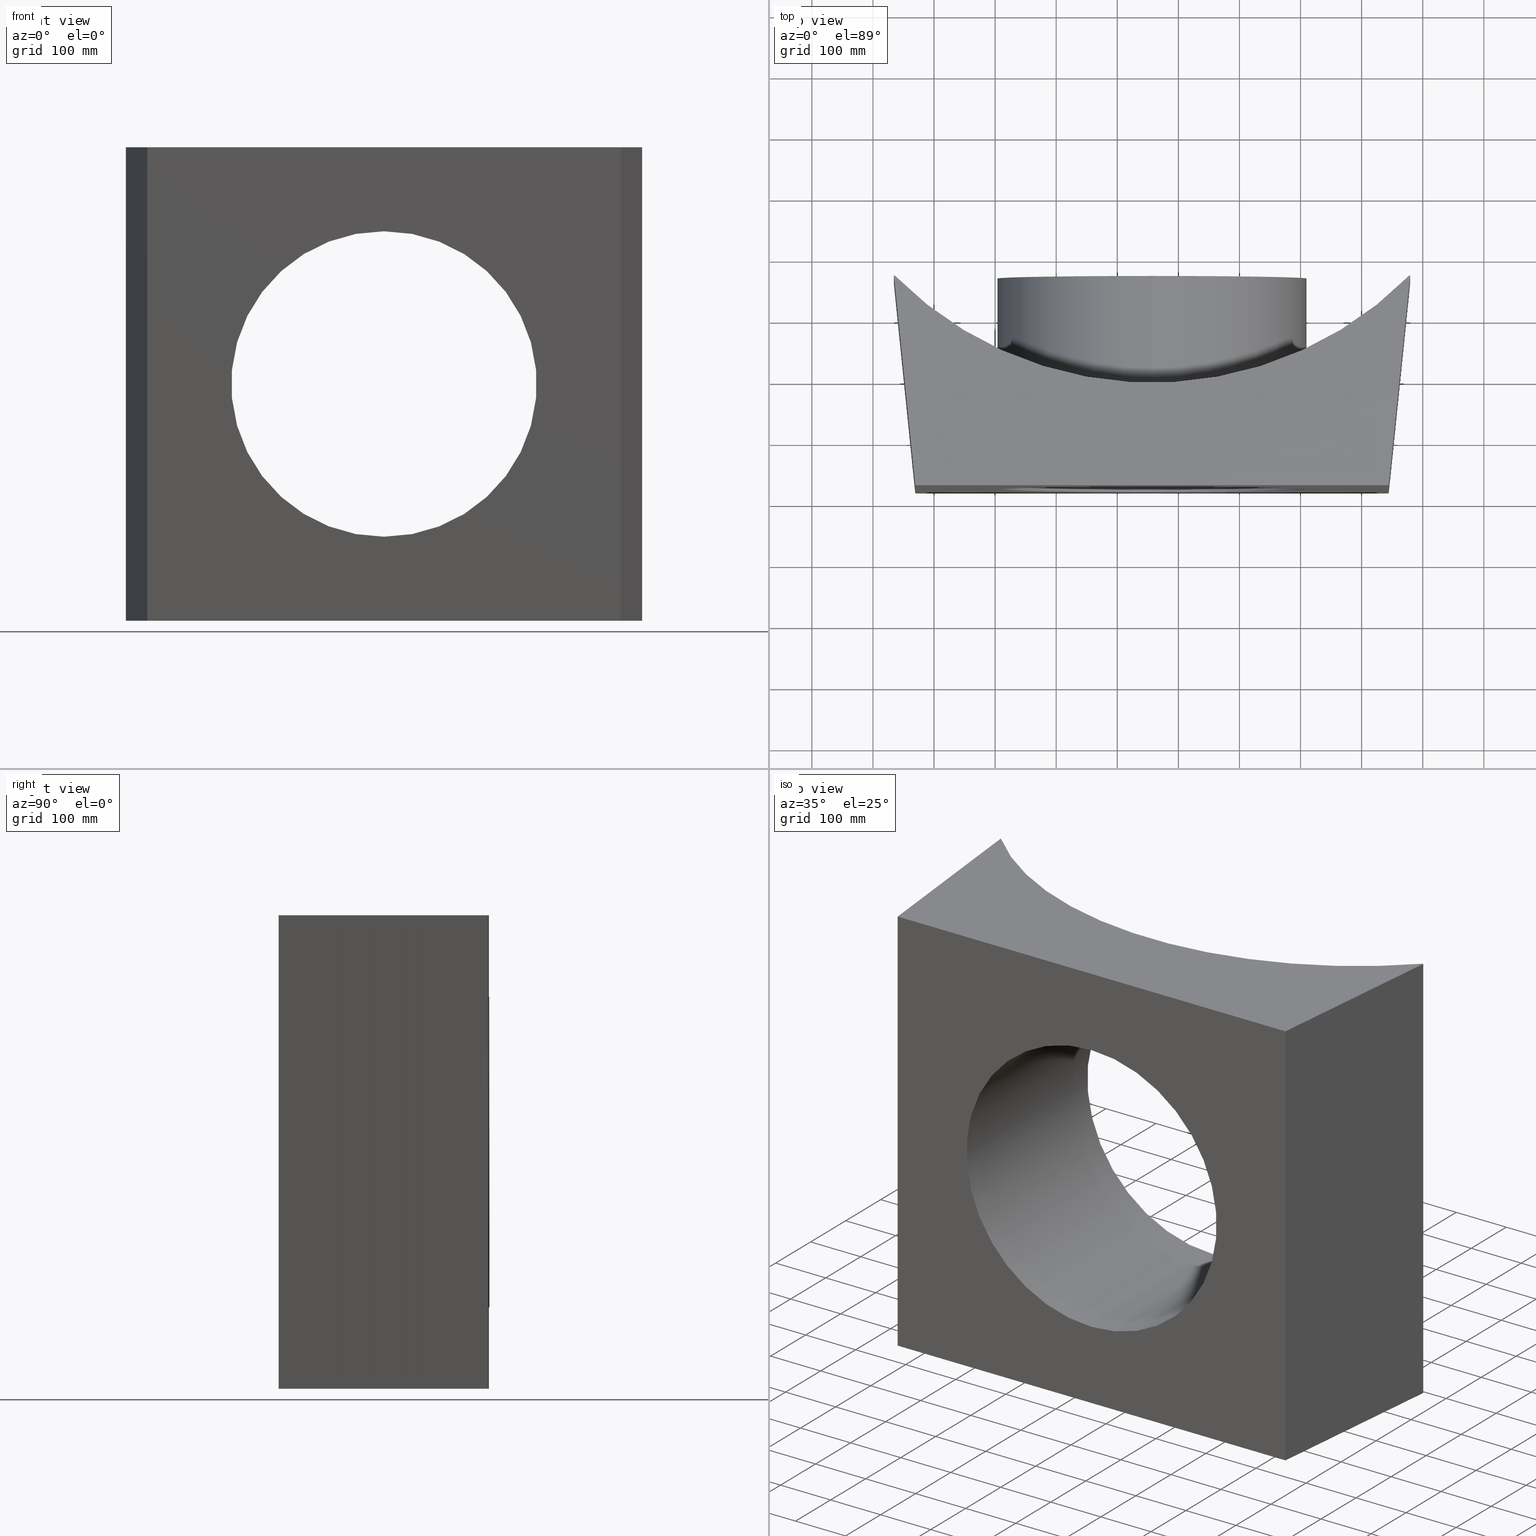
[diagram: canonical four-view strip — front | top / right | iso, engineering-drawing reading convention]
A machine part, canonical four-view strip (front | top / right | iso — engineering-drawing reading convention). The complete STEP part file that produces these views, byte-faithful:
ISO-10303-21;
HEADER;
FILE_DESCRIPTION (( 'STEP AP203' ),
    '1' );
FILE_NAME ('Rudus MYHDE500-1000 Valuliittym� 500-1000 Muovi.step',
    '2020-03-19T20:08:51',
    ( '' ),
    ( '' ),
    'SwSTEP 2.0',
    'SolidWorks 2019',
    '' );
FILE_SCHEMA (( 'CONFIG_CONTROL_DESIGN' ));
ENDSEC;

DATA;
#1 = LINE ( 'NONE', #175, #262 ) ;
#2 = DIRECTION ( 'NONE',  ( 0.0000000000000000000, 1.000000000000000000, 1.224646799147353454E-16 ) ) ;
#3 = PERSON_AND_ORGANIZATION_ROLE ( 'creator' ) ;
#4 = CALENDAR_DATE ( 2020, 19, 3 ) ;
#5 = UNCERTAINTY_MEASURE_WITH_UNIT (LENGTH_MEASURE( 1.000000000000000082E-05 ), #13, 'distance_accuracy_value', 'NONE');
#6 = DIRECTION ( 'NONE',  ( 0.0000000000000000000, 1.000000000000000000, 1.224646799147353454E-16 ) ) ;
#7 = CARTESIAN_POINT ( 'NONE',  ( 47.99816777347956531, 169.6902252298508245, 249.4326755034314544 ) ) ;
#8 = COORDINATED_UNIVERSAL_TIME_OFFSET ( 2, 0, .AHEAD. ) ;
#9 = LOCAL_TIME ( 22, 8, 51.00000000000000000, #171 ) ;
#10 = LINE ( 'NONE', #15, #811 ) ;
#11 = AXIS2_PLACEMENT_3D ( 'NONE', #704, #761, #308 ) ;
#12 = DIRECTION ( 'NONE',  ( 0.0000000000000000000, 1.000000000000000000, 1.224646799147353454E-16 ) ) ;
#13 =( LENGTH_UNIT ( ) NAMED_UNIT ( * ) SI_UNIT ( .MILLI., .METRE. ) );
#14 = APPROVAL_DATE_TIME ( #690, #332 ) ;
#15 = CARTESIAN_POINT ( 'NONE',  ( -422.4999999999998295, 343.2200460346102204, 387.5000000000000000 ) ) ;
#16 = CARTESIAN_POINT ( 'NONE',  ( -167.7446199373760578, 191.9591785279419582, 190.7742387784999210 ) ) ;
#17 = CARTESIAN_POINT ( 'NONE',  ( 0.0000000000000000000, -3.110602869834277181E-14, 253.9999999999999432 ) ) ;
#18 = DIRECTION ( 'NONE',  ( 0.0000000000000000000, 0.0000000000000000000, 1.000000000000000000 ) ) ;
#19 = B_SPLINE_CURVE_WITH_KNOTS ( 'NONE', 3,
 ( #384, #639, #169, #186, #241, #313, #801, #180, #694, #946, #625, #773, #564, #631, #119, #321, #90, #874, #781, #98, #191, #701, #480, #400, #16, #618, #487, #173, #935, #787, #390, #711, #928, #541, #853, #466, #23, #248, #868, #550, #39, #256, #557, #859, #473, #793, #106, #115, #407, #337, #276, #508, #512, #431, #653, #959, #818, #420, #589, #742, #200, #973, #894, #126, #887, #735, #347, #656, #667, #63, #138, #661, #54, #357, #962, #578, #732, #285, #885, #582, #273, #215, #891, #51, #900, #349, #197, #823, #575, #204, #496, #809, #499, #503, #815, #813, #133, #131, #423, #427, #737, #56, #209, #351, #967, #281, #111, #691, #168, #405 ),
 .UNSPECIFIED., .F., .F.,
 ( 4, 2, 2, 2, 2, 2, 2, 2, 2, 2, 2, 2, 2, 2, 2, 2, 2, 2, 2, 2, 2, 2, 2, 2, 2, 2, 2, 2, 2, 2, 2, 2, 2, 2, 2, 2, 2, 2, 2, 2, 2, 2, 2, 2, 2, 2, 2, 2, 2, 2, 2, 2, 2, 2, 4 ),
 ( 0.8039653402823760953, 0.8290662158491932665, 0.8353414347408976148, 0.8416166536326019632, 0.8541670914160105488, 0.8792679669828278310, 0.9043688425496451133, 0.9106440614413493506, 0.9169192803330536989, 0.9294697181164623956, 0.9545705936832795668, 0.9796714692500968491, 0.9922219070335054347, 0.9984971259252097830, 1.004772344816914131, 1.029873220383731081, 1.054974095950548252, 1.080074971517365423, 1.086350190409069771, 1.092625409300773898, 1.105175847084182372, 1.130276722650999321, 1.155377598217816271, 1.167928036001224745, 1.174203254892928872, 1.180478473784633220, 1.205579349351450169, 1.230680224918266896, 1.243230662701675371, 1.249505881593379497, 1.255781100485083845, 1.280881976051900573, 1.305982851618717522, 1.331083727185534471, 1.337358946077238375, 1.343634164968942724, 1.356184602752350976, 1.381285478319167925, 1.406386353885984430, 1.412661572777688557, 1.418936791669392683, 1.431487229452801380, 1.456588105019618329, 1.481688980586435278, 1.494239418369843975, 1.500514637261548323, 1.506789856153252449, 1.531890731720069621, 1.556991607286886570, 1.582092482853703963, 1.588367701745408089, 1.594642920637112438, 1.600918139528816786, 1.604055748974668738, 1.607193358420520912 ),
 .UNSPECIFIED. ) ;
#20 = ORIENTED_EDGE ( 'NONE', *, *, #898, .T. ) ;
#21 = DATE_AND_TIME ( #463, #9 ) ;
#22 = CARTESIAN_POINT ( 'NONE',  ( 0.0000000000000000000, 0.0000000000000000000, 387.5000000000000000 ) ) ;
#23 = CARTESIAN_POINT ( 'NONE',  ( -225.6538562742526892, 212.3592979177754785, 116.6219596265445233 ) ) ;
#24 = ORIENTED_EDGE ( 'NONE', *, *, #279, .T. ) ;
#25 = DIRECTION ( 'NONE',  ( 0.0000000000000000000, 1.000000000000000000, 1.224646799147353454E-16 ) ) ;
#26 = DATE_TIME_ROLE ( 'creation_date' ) ;
#27 = PLANE ( 'NONE',  #520 ) ;
#28 = ORIENTED_EDGE ( 'NONE', *, *, #406, .F. ) ;
#29 = APPROVAL_STATUS ( 'not_yet_approved' ) ;
#30 = FACE_OUTER_BOUND ( 'NONE', #253, .T. ) ;
#31 = EDGE_CURVE ( 'NONE', #906, #467, #265, .T. ) ;
#32 = CARTESIAN_POINT ( 'NONE',  ( 0.0000000000000000000, 0.0000000000000000000, 0.0000000000000000000 ) ) ;
#33 = EDGE_LOOP ( 'NONE', ( #788, #893, #439, #861 ) ) ;
#34 = FACE_BOUND ( 'NONE', #144, .T. ) ;
#35 = CARTESIAN_POINT ( 'NONE',  ( 231.1880818191453386, 214.6593021676888213, -105.5282963689263198 ) ) ;
#36 = AXIS2_PLACEMENT_3D ( 'NONE', #116, #643, #258 ) ;
#37 = DIRECTION ( 'NONE',  ( 0.0000000000000000000, -1.224646799147353454E-16, 1.000000000000000000 ) ) ;
#38 = CC_DESIGN_SECURITY_CLASSIFICATION ( #62, ( #127 ) ) ;
#39 = CARTESIAN_POINT ( 'NONE',  ( -232.8237990720853929, 215.3629202603104318, 101.6180321282059253 ) ) ;
#40 = EDGE_CURVE ( 'NONE', #939, #830, #863, .T. ) ;
#41 = COORDINATED_UNIVERSAL_TIME_OFFSET ( 2, 0, .AHEAD. ) ;
#42 = CC_DESIGN_DATE_AND_TIME_ASSIGNMENT ( #857, #709, ( #577 ) ) ;
#43 = FACE_OUTER_BOUND ( 'NONE', #436, .T. ) ;
#44 = CARTESIAN_POINT ( 'NONE',  ( 231.1482115277996741, 214.6421233880120667, 105.6245003053692813 ) ) ;
#45 = APPROVAL_STATUS ( 'not_yet_approved' ) ;
#46 = ORIENTED_EDGE ( 'NONE', *, *, #233, .F. ) ;
#47 = CARTESIAN_POINT ( 'NONE',  ( 112.9388806086124220, 178.5545142579443052, 227.6611593807815836 ) ) ;
#48 = EDGE_CURVE ( 'NONE', #467, #225, #453, .T. ) ;
#49 = DIRECTION ( 'NONE',  ( 0.1014492753623189303, 0.9948407131437978501, 0.0000000000000000000 ) ) ;
#50 = CARTESIAN_POINT ( 'NONE',  ( 90.21276134465220764, 174.5993217935238420, 237.5836847489358661 ) ) ;
#51 = CARTESIAN_POINT ( 'NONE',  ( -155.0348342550607867, 188.3351085430220735, -201.3648420486783550 ) ) ;
#52 = CARTESIAN_POINT ( 'NONE',  ( 237.4841110437440932, 217.3781649007263468, 90.12039120315024832 ) ) ;
#53 = CC_DESIGN_PERSON_AND_ORGANIZATION_ASSIGNMENT ( #381, #167, ( #658 ) ) ;
#54 = CARTESIAN_POINT ( 'NONE',  ( -213.2197007972301606, 207.4016718087703168, -138.0951427610688711 ) ) ;
#55 = CARTESIAN_POINT ( 'NONE',  ( 387.5000000000000000, -2.775557561562891351E-14, -387.5000000000000000 ) ) ;
#56 = CARTESIAN_POINT ( 'NONE',  ( -16.98756145259244477, 167.9877803526233890, -253.4401756340516840 ) ) ;
#57 = CARTESIAN_POINT ( 'NONE',  ( 134.7640208022760078, 183.2210039037046272, -215.4601281336603904 ) ) ;
#58 = VERTEX_POINT ( 'NONE', #641 ) ;
#59 = APPROVAL_DATE_TIME ( #912, #651 ) ;
#60 = AXIS2_PLACEMENT_3D ( 'NONE', #538, #914, #696 ) ;
#61 = CC_DESIGN_PERSON_AND_ORGANIZATION_ASSIGNMENT ( #713, #413, ( #972 ) ) ;
#62 = SECURITY_CLASSIFICATION ( '', '', #151 ) ;
#63 = CARTESIAN_POINT ( 'NONE',  ( -219.6829387557973803, 209.9400254619303325, -127.5136056674370195 ) ) ;
#64 = CARTESIAN_POINT ( 'NONE',  ( 8.502191517610109273, 167.7481887986640743, -253.9999999999999432 ) ) ;
#65 = CC_DESIGN_DATE_AND_TIME_ASSIGNMENT ( #904, #83, ( #278 ) ) ;
#66 = VERTEX_POINT ( 'NONE', #871 ) ;
#67 = DATE_TIME_ROLE ( 'classification_date' ) ;
#68 = ORIENTED_EDGE ( 'NONE', *, *, #214, .T. ) ;
#69 = CARTESIAN_POINT ( 'NONE',  ( 148.4333224163279397, 186.6231181764268854, -206.1257953215384475 ) ) ;
#70 = ADVANCED_FACE ( 'NONE', ( #636, #188 ), #418, .T. ) ;
#71 = COORDINATED_UNIVERSAL_TIME_OFFSET ( 2, 0, .AHEAD. ) ;
#72 = ITEM_DEFINED_TRANSFORMATION ( 'NONE', 'NONE', #718,  #500 ) ;
#73 = VERTEX_POINT ( 'NONE', #796 ) ;
#74 = APPLICATION_PROTOCOL_DEFINITION ( 'international standard', 'config_control_design', 1994, #860 ) ;
#75 = DATE_TIME_ROLE ( 'classification_date' ) ;
#76 = AXIS2_PLACEMENT_3D ( 'NONE', #179, #104, #638 ) ;
#77 = APPLICATION_CONTEXT ( 'configuration controlled 3d designs of mechanical parts and assemblies' ) ;
#78 = PERSON_AND_ORGANIZATION_ROLE ( 'classification_officer' ) ;
#79 = CC_DESIGN_PERSON_AND_ORGANIZATION_ASSIGNMENT ( #539, #686, ( #577 ) ) ;
#80 = SHAPE_REPRESENTATION ( 'muovi-lavistysyhde', ( #500 ), #448 ) ;
#81 = DIRECTION ( 'NONE',  ( -0.7112794612795219074, 0.7029093312525542814, 0.0000000000000000000 ) ) ;
#82 = DATE_AND_TIME ( #611, #88 ) ;
#83 = DATE_TIME_ROLE ( 'classification_date' ) ;
#84 = EDGE_CURVE ( 'NONE', #909, #505, #767, .T. ) ;
#85 = CARTESIAN_POINT ( 'NONE',  ( 422.5000000000000568, 343.2200460346102204, 387.5000000000000000 ) ) ;
#86 = CARTESIAN_POINT ( 'NONE',  ( 29.25538571288173273, 168.4555525270411067, 252.3444218738614779 ) ) ;
#87 = PERSON_AND_ORGANIZATION_ROLE ( 'design_supplier' ) ;
#88 = LOCAL_TIME ( 22, 8, 51.00000000000000000, #8 ) ;
#89 = DIRECTION ( 'NONE',  ( -0.1014492753623182919, 0.9948407131437978501, 0.0000000000000000000 ) ) ;
#90 = CARTESIAN_POINT ( 'NONE',  ( -107.4884534427931442, 177.5681779628506547, 230.1447618988494526 ) ) ;
#91 = LOCAL_TIME ( 22, 8, 51.00000000000000000, #157 ) ;
#92 = AXIS2_PLACEMENT_3D ( 'NONE', #237, #164, #836 ) ;
#93 = CARTESIAN_POINT ( 'NONE',  ( 3.110602869834276550E-14, -3.110602869834277181E-14, 253.9999999999999432 ) ) ;
#94 = DIRECTION ( 'NONE',  ( 0.0000000000000000000, -2.220446049250313081E-16, 1.000000000000000000 ) ) ;
#95 = ORIENTED_EDGE ( 'NONE', *, *, #535, .T. ) ;
#96 = SHAPE_DEFINITION_REPRESENTATION ( #763, #190 ) ;
#97 = DIRECTION ( 'NONE',  ( -0.0000000000000000000, -0.0000000000000000000, -1.000000000000000000 ) ) ;
#98 = CARTESIAN_POINT ( 'NONE',  ( -127.8226734394265520, 181.6402548994499568, 219.6501722694441128 ) ) ;
#99 = ORIENTED_EDGE ( 'NONE', *, *, #562, .T. ) ;
#100 = CARTESIAN_POINT ( 'NONE',  ( 3.110602869834276550E-14, -5.886160431397169163E-14, 253.9999999999999432 ) ) ;
#101 = FACE_OUTER_BOUND ( 'NONE', #396, .T. ) ;
#102 = ORIENTED_EDGE ( 'NONE', *, *, #370, .T. ) ;
#103 = APPROVAL_DATE_TIME ( #82, #689 ) ;
#104 = DIRECTION ( 'NONE',  ( 0.0000000000000000000, 1.000000000000000000, 1.224646799147353454E-16 ) ) ;
#105 = VECTOR ( 'NONE', #918, 1000.000000000000000 ) ;
#106 = CARTESIAN_POINT ( 'NONE',  ( -250.5328124634897904, 223.2700100050191168, 42.03737018607849762 ) ) ;
#107 = EDGE_LOOP ( 'NONE', ( #136, #46 ) ) ;
#108 = DIRECTION ( 'NONE',  ( 1.000000000000000000, 0.0000000000000000000, 0.0000000000000000000 ) ) ;
#109 = CARTESIAN_POINT ( 'NONE',  ( -387.5000000000000000, -2.775557561562891351E-14, 387.5000000000000000 ) ) ;
#110 = CARTESIAN_POINT ( 'NONE',  ( 244.0378497071402251, 220.2901281774211668, -70.46953440344282171 ) ) ;
#111 = CARTESIAN_POINT ( 'NONE',  ( -4.250568631534159536, 167.7624710219972144, -253.9666545677669092 ) ) ;
#112 = APPROVAL_PERSON_ORGANIZATION ( #785, #689, #327 ) ;
#113 = APPROVAL_PERSON_ORGANIZATION ( #980, #293, #601 ) ;
#114 = EDGE_CURVE ( 'NONE', #505, #909, #210, .T. ) ;
#115 = CARTESIAN_POINT ( 'NONE',  ( -251.4769673836931929, 223.7114530202344440, 35.77418802373816220 ) ) ;
#116 = CARTESIAN_POINT ( 'NONE',  ( 0.0000000000000000000, 0.0000000000000000000, 0.0000000000000000000 ) ) ;
#117 = LINE ( 'NONE', #109, #166 ) ;
#118 = CARTESIAN_POINT ( 'NONE',  ( 235.9654678398730709, 216.7169545333945280, 94.02492167481979379 ) ) ;
#119 = CARTESIAN_POINT ( 'NONE',  ( -101.7751034771621619, 176.5439619056177492, 232.7277185874757492 ) ) ;
#120 = DIRECTION ( 'NONE',  ( 0.0000000000000000000, 0.0000000000000000000, -1.000000000000000000 ) ) ;
#121 = DIRECTION ( 'NONE',  ( 0.0000000000000000000, -1.000000000000000000, -1.224646799147353454E-16 ) ) ;
#122 = CARTESIAN_POINT ( 'NONE',  ( 155.0428972702549686, 188.3375850446515472, 201.3573220819754681 ) ) ;
#123 = EDGE_CURVE ( 'NONE', #359, #505, #943, .T. ) ;
#124 = ORIENTED_EDGE ( 'NONE', *, *, #150, .T. ) ;
#125 = CARTESIAN_POINT ( 'NONE',  ( 82.42131903907528567, 173.4492165775756973, 240.3997163561458592 ) ) ;
#126 = CARTESIAN_POINT ( 'NONE',  ( -240.4407538154150643, 218.6740366586252549, -82.30216103953341644 ) ) ;
#127 = PRODUCT_DEFINITION_FORMATION_WITH_SPECIFIED_SOURCE ( 'ANY', '', #608, .NOT_KNOWN. ) ;
#128 = CARTESIAN_POINT ( 'NONE',  ( 253.1452504906206968, 224.4959044998374509, 20.92828843834958263 ) ) ;
#129 = AXIS2_PLACEMENT_3D ( 'NONE', #235, #336, #534 ) ;
#130 = APPROVAL ( #219, 'UNSPECIFIED' ) ;
#131 = CARTESIAN_POINT ( 'NONE',  ( -42.11289270684206798, 169.1885769616677067, -250.6232531080181900 ) ) ;
#132 = CARTESIAN_POINT ( 'NONE',  ( 158.3589897842905145, 189.2743527122035516, -198.6338297652217761 ) ) ;
#133 = CARTESIAN_POINT ( 'NONE',  ( -58.45747839641314414, 170.5795744955916007, -247.3221258806348999 ) ) ;
#134 = AXIS2_PLACEMENT_3D ( 'NONE', #854, #6, #681 ) ;
#135 = CARTESIAN_POINT ( 'NONE',  ( 185.5193536384363426, 197.4823920885503696, -173.6821423678905489 ) ) ;
#136 = ORIENTED_EDGE ( 'NONE', *, *, #734, .F. ) ;
#137 = CC_DESIGN_PERSON_AND_ORGANIZATION_ASSIGNMENT ( #438, #446, ( #289 ) ) ;
#138 = CARTESIAN_POINT ( 'NONE',  ( -218.6352207272893509, 209.5232285698341173, -129.3016574617243748 ) ) ;
#139 = DIRECTION ( 'NONE',  ( 0.0000000000000000000, -1.224646799147353454E-16, 1.000000000000000000 ) ) ;
#140 = ORIENTED_EDGE ( 'NONE', *, *, #884, .T. ) ;
#141 = MANIFOLD_SOLID_BREP ( 'Revolve1', #602 ) ;
#142 = CC_DESIGN_SECURITY_CLASSIFICATION ( #278, ( #983 ) ) ;
#143 = COORDINATED_UNIVERSAL_TIME_OFFSET ( 2, 0, .AHEAD. ) ;
#144 = EDGE_LOOP ( 'NONE', ( #584, #970 ) ) ;
#145 = EDGE_CURVE ( 'NONE', #177, #326, #789, .T. ) ;
#146 = CARTESIAN_POINT ( 'NONE',  ( 143.3462515269399091, 185.3318381573275246, -209.6953210745553235 ) ) ;
#147 = DATE_AND_TIME ( #369, #217 ) ;
#148 = PERSON_AND_ORGANIZATION ( #724, #485 ) ;
#149 = ORIENTED_EDGE ( 'NONE', *, *, #635, .T. ) ;
#150 = EDGE_CURVE ( 'NONE', #470, #739, #117, .T. ) ;
#151 = SECURITY_CLASSIFICATION_LEVEL ( 'unclassified' ) ;
#152 = ORIENTED_EDGE ( 'NONE', *, *, #847, .T. ) ;
#153 = CC_DESIGN_SECURITY_CLASSIFICATION ( #934, ( #289 ) ) ;
#154 = PRODUCT ( 'muovi-lavistysyhde', 'muovi-lavistysyhde', '', ( #845 ) ) ;
#155 = MECHANICAL_CONTEXT ( 'NONE', #860, 'mechanical' ) ;
#156 = CC_DESIGN_PERSON_AND_ORGANIZATION_ASSIGNMENT ( #514, #3, ( #289 ) ) ;
#157 = COORDINATED_UNIVERSAL_TIME_OFFSET ( 2, 0, .AHEAD. ) ;
#158 = LOCAL_TIME ( 22, 8, 51.00000000000000000, #523 ) ;
#159 = FACE_OUTER_BOUND ( 'NONE', #964, .T. ) ;
#160 = CARTESIAN_POINT ( 'NONE',  ( 8.375760051151676322, 167.7481887986640459, 253.9999999999998863 ) ) ;
#161 = ORIENTED_EDGE ( 'NONE', *, *, #84, .F. ) ;
#162 = DATE_AND_TIME ( #364, #404 ) ;
#163 = ADVANCED_FACE ( 'NONE', ( #43 ), #395, .T. ) ;
#164 = DIRECTION ( 'NONE',  ( 0.0000000000000000000, 0.0000000000000000000, 1.000000000000000000 ) ) ;
#165 = CARTESIAN_POINT ( 'NONE',  ( 0.0000000000000000000, -2.860594363054916521E-15, 249.9999999999999716 ) ) ;
#166 = VECTOR ( 'NONE', #259, 1000.000000000000114 ) ;
#167 = PERSON_AND_ORGANIZATION_ROLE ( 'creator' ) ;
#168 = CARTESIAN_POINT ( 'NONE',  ( -1.061799262410094924, 167.7481887986639890, -253.9999999999998295 ) ) ;
#169 = CARTESIAN_POINT ( 'NONE',  ( -16.75106011277696183, 167.9252307871824428, 253.5875208976789850 ) ) ;
#170 = FACE_OUTER_BOUND ( 'NONE', #720, .T. ) ;
#171 = COORDINATED_UNIVERSAL_TIME_OFFSET ( 2, 0, .AHEAD. ) ;
#172 = FACE_OUTER_BOUND ( 'NONE', #474, .T. ) ;
#173 = CARTESIAN_POINT ( 'NONE',  ( -176.8413384805532758, 194.7282268641729104, 182.3387597661833865 ) ) ;
#174 = VECTOR ( 'NONE', #449, 1000.000000000000000 ) ;
#175 = CARTESIAN_POINT ( 'NONE',  ( 387.5000000000000000, -2.775557561562891351E-14, -387.5000000000000000 ) ) ;
#176 = CARTESIAN_POINT ( 'NONE',  ( 0.0000000000000000000, 0.0000000000000000000, 0.0000000000000000000 ) ) ;
#177 = VERTEX_POINT ( 'NONE', #409 ) ;
#178 = CALENDAR_DATE ( 2020, 19, 3 ) ;
#179 = CARTESIAN_POINT ( 'NONE',  ( 0.0000000000000000000, -344.9999999999999432, -4.163336342344337027E-14 ) ) ;
#180 = CARTESIAN_POINT ( 'NONE',  ( -41.92945206066749364, 169.2175591449280319, 250.5510122075870072 ) ) ;
#181 = VERTEX_POINT ( 'NONE', #325 ) ;
#182 = CALENDAR_DATE ( 2020, 19, 3 ) ;
#183 = DIRECTION ( 'NONE',  ( 0.0000000000000000000, 1.000000000000000000, 1.224646799147353454E-16 ) ) ;
#184 = ORIENTED_EDGE ( 'NONE', *, *, #956, .F. ) ;
#185 = DIRECTION ( 'NONE',  ( -0.7112794612795219074, 0.7029093312525542814, 0.0000000000000000000 ) ) ;
#186 = CARTESIAN_POINT ( 'NONE',  ( -27.24886296191111512, 168.3708465878000027, 252.5429691466458735 ) ) ;
#187 = ORIENTED_EDGE ( 'NONE', *, *, #31, .F. ) ;
#188 = FACE_OUTER_BOUND ( 'NONE', #107, .T. ) ;
#189 = CARTESIAN_POINT ( 'NONE',  ( 253.5901891842399323, 224.7061856571554301, 14.57696633962544652 ) ) ;
#190 = SHAPE_REPRESENTATION ( 'Rudus MYHDE500-1000 Valuliittym� 500-1000 Muovi', ( #36, #759, #718 ), #250 ) ;
#191 = CARTESIAN_POINT ( 'NONE',  ( -134.8791131022358911, 183.2484444829904930, 215.3860594890611253 ) ) ;
#192 = CARTESIAN_POINT ( 'NONE',  ( 0.0000000000000000000, -2.775557561562891351E-14, 0.0000000000000000000 ) ) ;
#193 = CARTESIAN_POINT ( 'NONE',  ( 251.9139965747130248, 223.9156297880493867, 33.57037518812555277 ) ) ;
#194 = ORIENTED_EDGE ( 'NONE', *, *, #320, .T. ) ;
#195 = CARTESIAN_POINT ( 'NONE',  ( 238.2182945396981495, 217.6997152388483983, 88.16128430893863310 ) ) ;
#196 = PRODUCT_RELATED_PRODUCT_CATEGORY ( 'detail', '', ( #608 ) ) ;
#197 = CARTESIAN_POINT ( 'NONE',  ( -127.8075092663349892, 181.6372749040881445, -219.6578076155993244 ) ) ;
#198 = CARTESIAN_POINT ( 'NONE',  ( 237.5525499774274749, 217.3976690820672957, -90.29361278055985451 ) ) ;
#199 = APPROVAL_PERSON_ORGANIZATION ( #228, #977, #522 ) ;
#200 = CARTESIAN_POINT ( 'NONE',  ( -249.4566827714715771, 222.7699610586555536, -47.87315041408866989 ) ) ;
#201 = DIRECTION ( 'NONE',  ( -0.9948407131437979611, 0.1014492753623189580, 0.0000000000000000000 ) ) ;
#202 = ADVANCED_FACE ( 'NONE', ( #34, #489 ), #27, .F. ) ;
#203 = VECTOR ( 'NONE', #185, 1000.000000000000114 ) ;
#204 = CARTESIAN_POINT ( 'NONE',  ( -107.5587432652166626, 177.5811682568763672, -230.1118305560276838 ) ) ;
#205 = CYLINDRICAL_SURFACE ( 'NONE', #800, 250.0000000000000000 ) ;
#206 = ORIENTED_EDGE ( 'NONE', *, *, #84, .T. ) ;
#207 = ADVANCED_FACE ( 'NONE', ( #339 ), #954, .F. ) ;
#208 =( REPRESENTATION_RELATIONSHIP ('NONE','NONE', #190, #665 ) REPRESENTATION_RELATIONSHIP_WITH_TRANSFORMATION ( #596 )SHAPE_REPRESENTATION_RELATIONSHIP( ) );
#209 = CARTESIAN_POINT ( 'NONE',  ( -14.86474387199813663, 167.9307268374984687, -253.5735642483337813 ) ) ;
#210 = CIRCLE ( 'NONE', #702, 249.9999999999999716 ) ;
#211 = CARTESIAN_POINT ( 'NONE',  ( -422.4999999999998295, 343.2200460346102204, 387.5000000000000000 ) ) ;
#212 = EDGE_LOOP ( 'NONE', ( #161, #978 ) ) ;
#213 = DATE_AND_TIME ( #291, #659 ) ;
#214 = EDGE_CURVE ( 'NONE', #225, #467, #671, .T. ) ;
#215 = CARTESIAN_POINT ( 'NONE',  ( -167.6757351597067895, 191.9388564708600313, -190.8348171822387087 ) ) ;
#216 = CARTESIAN_POINT ( 'NONE',  ( 84.39647594367121997, 173.7812361613814574, -239.5780188988347845 ) ) ;
#217 = LOCAL_TIME ( 22, 8, 51.00000000000000000, #903 ) ;
#218 = CC_DESIGN_APPROVAL ( #663, ( #278 ) ) ;
#219 = APPROVAL_STATUS ( 'not_yet_approved' ) ;
#220 = CONTEXT_DEPENDENT_SHAPE_REPRESENTATION ( #441, #545 ) ;
#221 = CIRCLE ( 'NONE', #92, 593.0000000000000000 ) ;
#222 = ORIENTED_EDGE ( 'NONE', *, *, #370, .F. ) ;
#223 = COORDINATED_UNIVERSAL_TIME_OFFSET ( 2, 0, .AHEAD. ) ;
#224 = PERSON_AND_ORGANIZATION_ROLE ( 'classification_officer' ) ;
#225 = VERTEX_POINT ( 'NONE', #100 ) ;
#226 = PRODUCT_RELATED_PRODUCT_CATEGORY ( 'detail', '', ( #154 ) ) ;
#227 = DIRECTION ( 'NONE',  ( 1.000000000000000000, 0.0000000000000000000, 0.0000000000000000000 ) ) ;
#228 = PERSON_AND_ORGANIZATION ( #366, #812 ) ;
#229 = DIRECTION ( 'NONE',  ( -0.0000000000000000000, -0.0000000000000000000, -1.000000000000000000 ) ) ;
#230 = PERSON_AND_ORGANIZATION_ROLE ( 'design_owner' ) ;
#231 = DATE_AND_TIME ( #447, #757 ) ;
#232 = CARTESIAN_POINT ( 'NONE',  ( 387.5000000000000000, -2.775557561562891351E-14, 387.5000000000000000 ) ) ;
#233 = EDGE_CURVE ( 'NONE', #73, #181, #897, .T. ) ;
#234 = PERSON_AND_ORGANIZATION ( #366, #812 ) ;
#235 = CARTESIAN_POINT ( 'NONE',  ( 0.0000000000000000000, 0.0000000000000000000, 0.0000000000000000000 ) ) ;
#236 = CC_DESIGN_DATE_AND_TIME_ASSIGNMENT ( #147, #825, ( #469 ) ) ;
#237 = CARTESIAN_POINT ( 'NONE',  ( 0.0000000000000000000, 760.7481887986640459, -387.5000000000000000 ) ) ;
#238 = CARTESIAN_POINT ( 'NONE',  ( 0.0000000000000000000, -344.9999999999999432, -4.163336342344337027E-14 ) ) ;
#239 = DATE_AND_TIME ( #771, #344 ) ;
#240 = CYLINDRICAL_SURFACE ( 'NONE', #129, 253.9999999999999432 ) ;
#241 = CARTESIAN_POINT ( 'NONE',  ( -29.34937931753479035, 168.4711905815276793, 252.3075482883832024 ) ) ;
#242 = DIRECTION ( 'NONE',  ( 0.7112794612795219074, -0.7029093312525542814, 0.0000000000000000000 ) ) ;
#243 = CARTESIAN_POINT ( 'NONE',  ( 58.37778563188726366, 170.5698423064415863, 247.3454540501958263 ) ) ;
#244 = ORIENTED_EDGE ( 'NONE', *, *, #123, .F. ) ;
#245 = COORDINATED_UNIVERSAL_TIME_OFFSET ( 2, 0, .AHEAD. ) ;
#246 = CARTESIAN_POINT ( 'NONE',  ( 3.110602869834276550E-14, 5.886160431397169163E-14, -253.9999999999999432 ) ) ;
#247 = PRODUCT_DEFINITION_SHAPE ( 'NONE', 'NONE',  #616 ) ;
#248 = CARTESIAN_POINT ( 'NONE',  ( -227.5373199321938671, 213.1381025775584988, 112.9031104826210736 ) ) ;
#249 = EDGE_CURVE ( 'NONE', #333, #909, #371, .T. ) ;
#250 =( GEOMETRIC_REPRESENTATION_CONTEXT ( 3 ) GLOBAL_UNCERTAINTY_ASSIGNED_CONTEXT ( ( #619 ) ) GLOBAL_UNIT_ASSIGNED_CONTEXT ( ( #640, #862, #947 ) ) REPRESENTATION_CONTEXT ( 'NONE', 'WORKASPACE' ) );
#251 = ORIENTED_EDGE ( 'NONE', *, *, #412, .F. ) ;
#252 = CARTESIAN_POINT ( 'NONE',  ( -43.16512288988860746, -179.0195371366576467, 17.69499839866739421 ) ) ;
#253 = EDGE_LOOP ( 'NONE', ( #896, #434, #697, #251 ) ) ;
#254 = EDGE_LOOP ( 'NONE', ( #712, #937, #184, #401 ) ) ;
#255 = CARTESIAN_POINT ( 'NONE',  ( -387.5000000000000000, -2.775557561562891351E-14, -387.5000000000000000 ) ) ;
#256 = CARTESIAN_POINT ( 'NONE',  ( -237.6066913755457790, 217.4212978521460968, 90.15344522223057311 ) ) ;
#257 = ORIENTED_EDGE ( 'NONE', *, *, #233, .T. ) ;
#258 = DIRECTION ( 'NONE',  ( 1.000000000000000000, 0.0000000000000000000, 0.0000000000000000000 ) ) ;
#259 = DIRECTION ( 'NONE',  ( -0.1014492753623182919, 0.9948407131437978501, 0.0000000000000000000 ) ) ;
#260 = CARTESIAN_POINT ( 'NONE',  ( 191.0155335919851609, 199.3280408910960659, -167.6200185185566909 ) ) ;
#261 = CC_DESIGN_PERSON_AND_ORGANIZATION_ASSIGNMENT ( #234, #269, ( #154 ) ) ;
#262 = VECTOR ( 'NONE', #913, 1000.000000000000114 ) ;
#263 = FACE_OUTER_BOUND ( 'NONE', #626, .T. ) ;
#264 = APPLICATION_CONTEXT ( 'configuration controlled 3d designs of mechanical parts and assemblies' ) ;
#265 = LINE ( 'NONE', #806, #426 ) ;
#266 = CARTESIAN_POINT ( 'NONE',  ( 253.4598302023439089, 224.6445190336944222, 16.69208125779659113 ) ) ;
#267 = APPROVAL_PERSON_ORGANIZATION ( #148, #663, #292 ) ;
#268 = CALENDAR_DATE ( 2020, 19, 3 ) ;
#269 = PERSON_AND_ORGANIZATION_ROLE ( 'design_owner' ) ;
#270 = CARTESIAN_POINT ( 'NONE',  ( 422.5000000000000568, 343.2200460346102204, 387.5000000000000000 ) ) ;
#271 = CARTESIAN_POINT ( 'NONE',  ( 245.1718146745131151, 220.8035910209235624, -66.41693050667900877 ) ) ;
#272 = CARTESIAN_POINT ( 'NONE',  ( 205.0661548824184592, 204.3323434299415453, -149.8937452660548786 ) ) ;
#273 = CARTESIAN_POINT ( 'NONE',  ( -172.2654494099586771, 193.3187507927367506, -186.6678462996951282 ) ) ;
#274 = CARTESIAN_POINT ( 'NONE',  ( 227.6493068456598223, 213.1694567627248773, -112.9578440007400388 ) ) ;
#275 = CC_DESIGN_APPROVAL ( #293, ( #469 ) ) ;
#276 = CARTESIAN_POINT ( 'NONE',  ( -252.5306111584210669, 224.2061640067578878, 27.36335481777674872 ) ) ;
#277 = CARTESIAN_POINT ( 'NONE',  ( 167.8955079980050868, 191.9742809041519536, -190.7746583928076518 ) ) ;
#278 = SECURITY_CLASSIFICATION ( '', '', #683 ) ;
#279 = EDGE_CURVE ( 'NONE', #326, #752, #532, .T. ) ;
#280 = EDGE_LOOP ( 'NONE', ( #99, #820, #931, #827 ) ) ;
#281 = CARTESIAN_POINT ( 'NONE',  ( -5.312749543296066967, 167.7710370536334494, -253.9466539886837211 ) ) ;
#282 = CARTESIAN_POINT ( 'NONE',  ( -422.4999999999998295, 343.2200460346102204, -387.5000000000000000 ) ) ;
#283 = ORIENTED_EDGE ( 'NONE', *, *, #847, .F. ) ;
#284 = APPROVAL_DATE_TIME ( #829, #130 ) ;
#285 = CARTESIAN_POINT ( 'NONE',  ( -178.2558721717871038, 195.1722142043649626, -180.9560651650307079 ) ) ;
#286 = CARTESIAN_POINT ( 'NONE',  ( 76.41107962918513863, 172.6882878226882383, -242.2431864150011620 ) ) ;
#287 = DATE_AND_TIME ( #674, #756 ) ;
#288 = ORIENTED_EDGE ( 'NONE', *, *, #298, .T. ) ;
#289 = PRODUCT_DEFINITION_FORMATION_WITH_SPECIFIED_SOURCE ( 'ANY', '', #154, .NOT_KNOWN. ) ;
#290 = VECTOR ( 'NONE', #311, 1000.000000000000000 ) ;
#291 = CALENDAR_DATE ( 2020, 19, 3 ) ;
#292 = APPROVAL_ROLE ( '' ) ;
#293 = APPROVAL ( #528, 'UNSPECIFIED' ) ;
#294 = EDGE_LOOP ( 'NONE', ( #24, #856, #560, #677, #628, #322 ) ) ;
#295 = FACE_OUTER_BOUND ( 'NONE', #481, .T. ) ;
#296 = DATE_AND_TIME ( #518, #966 ) ;
#297 = COORDINATED_UNIVERSAL_TIME_OFFSET ( 2, 0, .AHEAD. ) ;
#298 = EDGE_CURVE ( 'NONE', #177, #865, #604, .T. ) ;
#299 = CARTESIAN_POINT ( 'NONE',  ( 0.0000000000000000000, -345.0000000000000000, 249.9999999999999432 ) ) ;
#300 = AXIS2_PLACEMENT_3D ( 'NONE', #192, #493, #882 ) ;
#301 = APPROVAL_STATUS ( 'not_yet_approved' ) ;
#302 = CARTESIAN_POINT ( 'NONE',  ( 3.061616997868383753E-14, -344.9999999999998863, -250.0000000000000568 ) ) ;
#303 = PRODUCT_RELATED_PRODUCT_CATEGORY ( 'detail', '', ( #972 ) ) ;
#304 = APPROVAL_DATE_TIME ( #239, #603 ) ;
#305 = DIRECTION ( 'NONE',  ( 0.0000000000000000000, 0.0000000000000000000, -1.000000000000000000 ) ) ;
#306 = CONTEXT_DEPENDENT_SHAPE_REPRESENTATION ( #208, #902 ) ;
#307 = VECTOR ( 'NONE', #314, 1000.000000000000000 ) ;
#308 = DIRECTION ( 'NONE',  ( 0.0000000000000000000, -1.224646799147353454E-16, 1.000000000000000000 ) ) ;
#309 =( NAMED_UNIT ( * ) PLANE_ANGLE_UNIT ( ) SI_UNIT ( $, .RADIAN. ) );
#310 = PERSON_AND_ORGANIZATION ( #366, #812 ) ;
#311 = DIRECTION ( 'NONE',  ( 0.0000000000000000000, 1.000000000000000000, 1.224646799147353454E-16 ) ) ;
#312 = ADVANCED_FACE ( 'NONE', ( #159, #543 ), #620, .T. ) ;
#313 = CARTESIAN_POINT ( 'NONE',  ( -33.55234300634887035, 168.6944167794236762, 251.7830917047522234 ) ) ;
#314 = DIRECTION ( 'NONE',  ( 0.0000000000000000000, -1.000000000000000000, -1.224646799147353454E-16 ) ) ;
#315 = CARTESIAN_POINT ( 'NONE',  ( 33.42457130649435726, 168.6762180268223688, 251.8264026829613158 ) ) ;
#316 = ORIENTED_EDGE ( 'NONE', *, *, #492, .F. ) ;
#317 = VECTOR ( 'NONE', #728, 1000.000000000000000 ) ;
#318 = DATE_TIME_ROLE ( 'creation_date' ) ;
#319 = DIRECTION ( 'NONE',  ( 0.0000000000000000000, 0.0000000000000000000, -1.000000000000000000 ) ) ;
#320 = EDGE_CURVE ( 'NONE', #865, #672, #1, .T. ) ;
#321 = CARTESIAN_POINT ( 'NONE',  ( -105.5886358643135026, 177.2211625318403208, 231.0225154893605009 ) ) ;
#322 = ORIENTED_EDGE ( 'NONE', *, *, #145, .T. ) ;
#323 = CARTESIAN_POINT ( 'NONE',  ( 0.0000000000000000000, -3.061616997868383753E-14, 250.0000000000000000 ) ) ;
#324 = DIRECTION ( 'NONE',  ( 1.000000000000000000, 0.0000000000000000000, 0.0000000000000000000 ) ) ;
#325 = CARTESIAN_POINT ( 'NONE',  ( 0.0000000000000000000, -345.0000000000000000, 253.9999999999998863 ) ) ;
#326 = VERTEX_POINT ( 'NONE', #85 ) ;
#327 = APPROVAL_ROLE ( '' ) ;
#328 = CC_DESIGN_APPROVAL ( #977, ( #934 ) ) ;
#329 = CARTESIAN_POINT ( 'NONE',  ( 421.7887205387204403, 343.9229553658627765, 387.5000000000000000 ) ) ;
#330 = DIRECTION ( 'NONE',  ( 0.0000000000000000000, 1.000000000000000000, 1.224646799147353454E-16 ) ) ;
#331 = VECTOR ( 'NONE', #668, 1000.000000000000000 ) ;
#332 = APPROVAL ( #533, 'UNSPECIFIED' ) ;
#333 = VERTEX_POINT ( 'NONE', #299 ) ;
#334 = DIRECTION ( 'NONE',  ( 0.0000000000000000000, 1.224646799147353454E-16, -1.000000000000000000 ) ) ;
#335 = CARTESIAN_POINT ( 'NONE',  ( 250.6744765916696451, 223.3334341663506848, -41.81623873262395108 ) ) ;
#336 = DIRECTION ( 'NONE',  ( 0.0000000000000000000, -1.000000000000000000, -1.224646799147353454E-16 ) ) ;
#337 = CARTESIAN_POINT ( 'NONE',  ( -252.2939211728870816, 224.0947977384612386, 29.46650131738460487 ) ) ;
#338 = EDGE_CURVE ( 'NONE', #333, #359, #456, .T. ) ;
#339 = FACE_OUTER_BOUND ( 'NONE', #280, .T. ) ;
#340 = CARTESIAN_POINT ( 'NONE',  ( 201.4223818166995272, 202.9765984675151174, 154.9635464881320104 ) ) ;
#341 = CARTESIAN_POINT ( 'NONE',  ( 0.0000000000000000000, -345.0000000000000000, 253.9999999999998863 ) ) ;
#342 = CARTESIAN_POINT ( 'NONE',  ( 105.4715482059560117, 177.1519335674679496, 231.2144071794567992 ) ) ;
#343 = CC_DESIGN_DATE_AND_TIME_ASSIGNMENT ( #296, #666, ( #62 ) ) ;
#344 = LOCAL_TIME ( 22, 8, 51.00000000000000000, #378 ) ;
#345 = CARTESIAN_POINT ( 'NONE',  ( 0.0000000000000000000, 2.775557561562891351E-14, 0.0000000000000000000 ) ) ;
#346 = CARTESIAN_POINT ( 'NONE',  ( 240.3783267154773284, 218.6462589426242005, -82.48852851113591100 ) ) ;
#347 = CARTESIAN_POINT ( 'NONE',  ( -227.6795668315899945, 213.1816034797883503, -112.9047101360959431 ) ) ;
#348 = CARTESIAN_POINT ( 'NONE',  ( 190.8040920694085401, 199.2815044613738849, 167.6724955150326366 ) ) ;
#349 = CARTESIAN_POINT ( 'NONE',  ( -134.8441044775073294, 183.2404362480139639, -215.4073235872259033 ) ) ;
#350 = CARTESIAN_POINT ( 'NONE',  ( 33.60987177397535675, 168.6425274518990136, -251.9061001512045834 ) ) ;
#351 = CARTESIAN_POINT ( 'NONE',  ( -10.62128458197945768, 167.8395178127467489, -253.7867242584065934 ) ) ;
#352 = PLANE ( 'NONE',  #368 ) ;
#353 = CIRCLE ( 'NONE', #741, 593.0000000000000000 ) ;
#354 = ORIENTED_EDGE ( 'NONE', *, *, #422, .T. ) ;
#355 = PERSON_AND_ORGANIZATION ( #366, #812 ) ;
#356 = APPROVAL_PERSON_ORGANIZATION ( #511, #680, #822 ) ;
#357 = CARTESIAN_POINT ( 'NONE',  ( -206.3468517990314126, 204.7859495735013695, -148.3395220488120003 ) ) ;
#358 = CARTESIAN_POINT ( 'NONE',  ( 58.25382594454466556, 170.5592056663282392, -247.3707037854362341 ) ) ;
#359 = VERTEX_POINT ( 'NONE', #302 ) ;
#360 = DATE_AND_TIME ( #435, #516 ) ;
#361 = ORIENTED_EDGE ( 'NONE', *, *, #40, .T. ) ;
#362 = VECTOR ( 'NONE', #81, 1000.000000000000114 ) ;
#363 = FACE_OUTER_BOUND ( 'NONE', #942, .T. ) ;
#364 = CALENDAR_DATE ( 2020, 19, 3 ) ;
#365 = COORDINATED_UNIVERSAL_TIME_OFFSET ( 2, 0, .AHEAD. ) ;
#366 = PERSON ( 'UNSPECIFIED', 'UNSPECIFIED', 'UNSPECIFIED', ('UNSPECIFIED'), ('UNSPECIFIED'), ('UNSPECIFIED') ) ;
#367 = ORIENTED_EDGE ( 'NONE', *, *, #338, .T. ) ;
#368 = AXIS2_PLACEMENT_3D ( 'NONE', #501, #201, #583 ) ;
#369 = CALENDAR_DATE ( 2020, 19, 3 ) ;
#370 = EDGE_CURVE ( 'NONE', #708, #66, #527, .T. ) ;
#371 = LINE ( 'NONE', #323, #105 ) ;
#372 = APPROVAL_ROLE ( '' ) ;
#373 = APPROVAL_STATUS ( 'not_yet_approved' ) ;
#374 = EDGE_CURVE ( 'NONE', #752, #58, #393, .T. ) ;
#375 = EDGE_CURVE ( 'NONE', #830, #58, #221, .T. ) ;
#376 = DIRECTION ( 'NONE',  ( 0.0000000000000000000, -2.220446049250313081E-16, 1.000000000000000000 ) ) ;
#377 = CARTESIAN_POINT ( 'NONE',  ( 0.0000000000000000000, 0.0000000000000000000, 0.0000000000000000000 ) ) ;
#378 = COORDINATED_UNIVERSAL_TIME_OFFSET ( 2, 0, .AHEAD. ) ;
#379 = ADVANCED_FACE ( 'NONE', ( #170 ), #454, .F. ) ;
#380 = CARTESIAN_POINT ( 'NONE',  ( 422.5000000000000568, 343.2200460346102204, 387.5000000000000000 ) ) ;
#381 = PERSON_AND_ORGANIZATION ( #366, #812 ) ;
#382 = CARTESIAN_POINT ( 'NONE',  ( -387.5000000000000000, -2.775557561562891351E-14, 387.5000000000000000 ) ) ;
#383 = AXIS2_PLACEMENT_3D ( 'NONE', #687, #12, #613 ) ;
#384 = CARTESIAN_POINT ( 'NONE',  ( 3.110656223077602607E-14, 167.7481887986640743, 253.9999999999999432 ) ) ;
#385 = CC_DESIGN_APPROVAL ( #130, ( #127 ) ) ;
#386 = LINE ( 'NONE', #460, #660 ) ;
#387 = ORIENTED_EDGE ( 'NONE', *, *, #249, .T. ) ;
#388 = APPROVAL_ROLE ( '' ) ;
#389 = PLANE ( 'NONE',  #917 ) ;
#390 = CARTESIAN_POINT ( 'NONE',  ( -191.1033671966806935, 199.3581514455874810, 167.5184378686720379 ) ) ;
#391 = APPLICATION_CONTEXT ( 'configuration controlled 3d designs of mechanical parts and assemblies' ) ;
#392 = ORIENTED_EDGE ( 'NONE', *, *, #910, .T. ) ;
#393 = LINE ( 'NONE', #769, #174 ) ;
#394 = DIRECTION ( 'NONE',  ( 0.0000000000000000000, -1.000000000000000000, -1.224646799147353454E-16 ) ) ;
#395 = PLANE ( 'NONE',  #574 ) ;
#396 = EDGE_LOOP ( 'NONE', ( #664, #777, #703, #938 ) ) ;
#397 = COORDINATED_UNIVERSAL_TIME_OFFSET ( 2, 0, .AHEAD. ) ;
#398 = CARTESIAN_POINT ( 'NONE',  ( -422.4999999999998295, 343.2200460346102204, 387.5000000000000000 ) ) ;
#399 = CC_DESIGN_PERSON_AND_ORGANIZATION_ASSIGNMENT ( #952, #565, ( #926 ) ) ;
#400 = CARTESIAN_POINT ( 'NONE',  ( -164.6280477816947609, 191.0487118633849661, 193.4696914031733002 ) ) ;
#401 = ORIENTED_EDGE ( 'NONE', *, *, #655, .T. ) ;
#402 = DIRECTION ( 'NONE',  ( 0.0000000000000000000, 1.000000000000000000, 1.224646799147353454E-16 ) ) ;
#403 = CARTESIAN_POINT ( 'NONE',  ( 219.8625958815280228, 209.9967806137805724, -127.4524239112021746 ) ) ;
#404 = LOCAL_TIME ( 22, 8, 51.00000000000000000, #916 ) ;
#405 = CARTESIAN_POINT ( 'NONE',  ( 0.0000000000000000000, 167.7481887986640459, -253.9999999999998863 ) ) ;
#406 = EDGE_CURVE ( 'NONE', #669, #865, #386, .T. ) ;
#407 = CARTESIAN_POINT ( 'NONE',  ( -251.7667397516346739, 223.8472728448554960, 33.67500728301410362 ) ) ;
#408 = DATE_AND_TIME ( #182, #821 ) ;
#409 = CARTESIAN_POINT ( 'NONE',  ( 387.5000000000000000, -2.775557561562891351E-14, 387.5000000000000000 ) ) ;
#410 = CARTESIAN_POINT ( 'NONE',  ( 208.6717096504256688, 205.6745477174553969, -144.8323672637966411 ) ) ;
#411 = DESIGN_CONTEXT ( 'detailed design', #707, 'design' ) ;
#412 = EDGE_CURVE ( 'NONE', #181, #66, #775, .T. ) ;
#413 = PERSON_AND_ORGANIZATION_ROLE ( 'design_owner' ) ;
#414 = CC_DESIGN_PERSON_AND_ORGANIZATION_ASSIGNMENT ( #670, #760, ( #469 ) ) ;
#415 = DIRECTION ( 'NONE',  ( 0.0000000000000000000, -0.0000000000000000000, 1.000000000000000000 ) ) ;
#416 = CARTESIAN_POINT ( 'NONE',  ( 134.6538547803721144, 183.2269750742337919, 215.4106032990268318 ) ) ;
#417 = AXIS2_PLACEMENT_3D ( 'NONE', #843, #525, #376 ) ;
#418 = PLANE ( 'NONE',  #927 ) ;
#419 = CARTESIAN_POINT ( 'NONE',  ( 123.8977766190577796, 180.8238339850883278, 221.7713676509798120 ) ) ;
#420 = CARTESIAN_POINT ( 'NONE',  ( -250.9095640811042074, 223.4461247220338009, -39.55775245291005149 ) ) ;
#421 = CARTESIAN_POINT ( 'NONE',  ( 247.3687629719210292, 221.8038592580134889, 58.26272107474547823 ) ) ;
#422 = EDGE_CURVE ( 'NONE', #784, #225, #848, .T. ) ;
#423 = CARTESIAN_POINT ( 'NONE',  ( -33.82830732110428329, 168.6541359738757819, -251.8788437250852326 ) ) ;
#424 = CARTESIAN_POINT ( 'NONE',  ( 173.9593276265724739, 193.8055632626993088, -185.2594653010589241 ) ) ;
#425 = CC_DESIGN_DATE_AND_TIME_ASSIGNMENT ( #705, #26, ( #926 ) ) ;
#426 = VECTOR ( 'NONE', #554, 1000.000000000000000 ) ;
#427 = CARTESIAN_POINT ( 'NONE',  ( -23.32594556870494884, 168.2034053655936532, -252.9354797307147749 ) ) ;
#428 = CARTESIAN_POINT ( 'NONE',  ( 422.5000000000000568, 343.2200460346102204, 387.5000000000000000 ) ) ;
#429 = ORIENTED_EDGE ( 'NONE', *, *, #249, .F. ) ;
#430 = LOCAL_TIME ( 22, 8, 51.00000000000000000, #397 ) ;
#431 = CARTESIAN_POINT ( 'NONE',  ( -254.0029112069883013, 224.9016425665687677, -8.284842479212453981 ) ) ;
#432 = CARTESIAN_POINT ( 'NONE',  ( -421.7887205387204403, 343.9229553658628902, -387.5000000000000000 ) ) ;
#433 = VECTOR ( 'NONE', #97, 1000.000000000000000 ) ;
#434 = ORIENTED_EDGE ( 'NONE', *, *, #521, .T. ) ;
#435 = CALENDAR_DATE ( 2020, 19, 3 ) ;
#436 = EDGE_LOOP ( 'NONE', ( #817, #747, #124, #140 ) ) ;
#437 = LINE ( 'NONE', #211, #331 ) ;
#438 = PERSON_AND_ORGANIZATION ( #366, #812 ) ;
#439 = ORIENTED_EDGE ( 'NONE', *, *, #31, .T. ) ;
#440 = VECTOR ( 'NONE', #566, 1000.000000000000000 ) ;
#441 =( REPRESENTATION_RELATIONSHIP ('NONE','NONE', #190, #80 ) REPRESENTATION_RELATIONSHIP_WITH_TRANSFORMATION ( #72 )SHAPE_REPRESENTATION_RELATIONSHIP( ) );
#442 = PERSON_AND_ORGANIZATION_ROLE ( 'classification_officer' ) ;
#443 = PERSON_AND_ORGANIZATION_ROLE ( 'classification_officer' ) ;
#444 = DIRECTION ( 'NONE',  ( 1.000000000000000000, 0.0000000000000000000, 0.0000000000000000000 ) ) ;
#445 = AXIS2_PLACEMENT_3D ( 'NONE', #911, #2, #688 ) ;
#446 = PERSON_AND_ORGANIZATION_ROLE ( 'design_supplier' ) ;
#447 = CALENDAR_DATE ( 2020, 19, 3 ) ;
#448 =( GEOMETRIC_REPRESENTATION_CONTEXT ( 3 ) GLOBAL_UNCERTAINTY_ASSIGNED_CONTEXT ( ( #774 ) ) GLOBAL_UNIT_ASSIGNED_CONTEXT ( ( #610, #455, #776 ) ) REPRESENTATION_CONTEXT ( 'NONE', 'WORKASPACE' ) );
#449 = DIRECTION ( 'NONE',  ( -0.0000000000000000000, -0.0000000000000000000, -1.000000000000000000 ) ) ;
#450 = DIRECTION ( 'NONE',  ( 0.0000000000000000000, 1.000000000000000000, 1.224646799147353454E-16 ) ) ;
#451 = COORDINATED_UNIVERSAL_TIME_OFFSET ( 2, 0, .AHEAD. ) ;
#452 = APPROVAL_DATE_TIME ( #592, #768 ) ;
#453 = CIRCLE ( 'NONE', #300, 253.9999999999999432 ) ;
#454 = CYLINDRICAL_SURFACE ( 'NONE', #383, 250.0000000000000000 ) ;
#455 =( NAMED_UNIT ( * ) PLANE_ANGLE_UNIT ( ) SI_UNIT ( $, .RADIAN. ) );
#456 = CIRCLE ( 'NONE', #417, 250.0000000000000000 ) ;
#457 = CALENDAR_DATE ( 2020, 19, 3 ) ;
#458 = DIRECTION ( 'NONE',  ( -0.7029093312526654147, 0.7112794612794122173, 0.0000000000000000000 ) ) ;
#459 = CARTESIAN_POINT ( 'NONE',  ( -387.5000000000000000, -2.775557561562891351E-14, 387.5000000000000000 ) ) ;
#460 = CARTESIAN_POINT ( 'NONE',  ( -387.5000000000000000, -2.775557561562891351E-14, -387.5000000000000000 ) ) ;
#461 = CARTESIAN_POINT ( 'NONE',  ( 3.110656223077602607E-14, 167.7481887986640743, 253.9999999999999432 ) ) ;
#462 = ORIENTED_EDGE ( 'NONE', *, *, #492, .T. ) ;
#463 = CALENDAR_DATE ( 2020, 19, 3 ) ;
#464 = FACE_OUTER_BOUND ( 'NONE', #33, .T. ) ;
#465 = VECTOR ( 'NONE', #892, 1000.000000000000000 ) ;
#466 = CARTESIAN_POINT ( 'NONE',  ( -224.6880616091489173, 211.9627979871164882, 118.4719213125589761 ) ) ;
#467 = VERTEX_POINT ( 'NONE', #948 ) ;
#468 = CARTESIAN_POINT ( 'NONE',  ( 0.0000000000000000000, -2.775557561562891351E-14, 0.0000000000000000000 ) ) ;
#469 = PRODUCT_DEFINITION ( 'UNKNOWN', '', #127, #842 ) ;
#470 = VERTEX_POINT ( 'NONE', #459 ) ;
#471 = PERSON_AND_ORGANIZATION ( #366, #812 ) ;
#472 = FACE_OUTER_BOUND ( 'NONE', #622, .T. ) ;
#473 = CARTESIAN_POINT ( 'NONE',  ( -247.3179748971849392, 221.7805178990628860, 58.47948239573771190 ) ) ;
#474 = EDGE_LOOP ( 'NONE', ( #975, #593, #580, #28, #95, #152 ) ) ;
#475 = DIRECTION ( 'NONE',  ( 0.0000000000000000000, -1.224646799147353454E-16, 1.000000000000000000 ) ) ;
#476 = CARTESIAN_POINT ( 'NONE',  ( 209.8492795897041105, 206.1187609820645719, -143.1208236814923680 ) ) ;
#477 = EDGE_LOOP ( 'NONE', ( #20, #462 ) ) ;
#478 = CARTESIAN_POINT ( 'NONE',  ( 0.0000000000000000000, 0.0000000000000000000, 0.0000000000000000000 ) ) ;
#479 = ADVANCED_FACE ( 'NONE', ( #263 ), #719, .T. ) ;
#480 = CARTESIAN_POINT ( 'NONE',  ( -155.1028611554629606, 188.3535216254281579, 201.3126049048931918 ) ) ;
#481 = EDGE_LOOP ( 'NONE', ( #316, #354, #68, #187 ) ) ;
#482 = PERSON_AND_ORGANIZATION ( #366, #812 ) ;
#483 = DIRECTION ( 'NONE',  ( 0.1014492753623182919, -0.9948407131437978501, 0.0000000000000000000 ) ) ;
#484 = CARTESIAN_POINT ( 'NONE',  ( 247.2678303268099285, 221.7594009343232813, -58.24426218473637107 ) ) ;
#485 = ORGANIZATION ( 'NAUO-ORG2', 'UNSPECIFIED', 'UNSPECIFIED' ) ;
#486 = CC_DESIGN_PERSON_AND_ORGANIZATION_ASSIGNMENT ( #471, #87, ( #658 ) ) ;
#487 = CARTESIAN_POINT ( 'NONE',  ( -173.8469818141246890, 193.8013806957911243, 185.1958671860227241 ) ) ;
#488 = APPLICATION_PROTOCOL_DEFINITION ( 'international standard', 'config_control_design', 1994, #391 ) ;
#489 = FACE_OUTER_BOUND ( 'NONE', #254, .T. ) ;
#490 = CARTESIAN_POINT ( 'NONE',  ( 252.9614617035083484, 224.4091612022355662, 23.04291383173364949 ) ) ;
#491 = CC_DESIGN_APPROVAL ( #768, ( #581 ) ) ;
#492 = EDGE_CURVE ( 'NONE', #784, #906, #19, .T. ) ;
#493 = DIRECTION ( 'NONE',  ( 0.0000000000000000000, -1.000000000000000000, -1.224646799147353454E-16 ) ) ;
#494 = CARTESIAN_POINT ( 'NONE',  ( 185.2844935170687393, 197.4301833995232869, 173.7889902525149921 ) ) ;
#495 = AXIS2_PLACEMENT_3D ( 'NONE', #609, #25, #929 ) ;
#496 = CARTESIAN_POINT ( 'NONE',  ( -105.6638235753479194, 177.2347595466483199, -230.9881770003695181 ) ) ;
#497 = CARTESIAN_POINT ( 'NONE',  ( 193.5059845708750288, 200.2069565004522360, 164.5469575468542587 ) ) ;
#498 = APPROVAL_PERSON_ORGANIZATION ( #779, #603, #388 ) ;
#499 = CARTESIAN_POINT ( 'NONE',  ( -99.91497458688635902, 176.2228815965570732, -233.5324013627754312 ) ) ;
#500 = AXIS2_PLACEMENT_3D ( 'NONE', #377, #18, #444 ) ;
#501 = CARTESIAN_POINT ( 'NONE',  ( 387.5000000000000000, -2.775557561562891351E-14, 387.5000000000000000 ) ) ;
#502 = CC_DESIGN_PERSON_AND_ORGANIZATION_ASSIGNMENT ( #310, #614, ( #616 ) ) ;
#503 = CARTESIAN_POINT ( 'NONE',  ( -90.25558593553056141, 174.6045888932444257, -237.5712173956172819 ) ) ;
#504 = CARTESIAN_POINT ( 'NONE',  ( 16.92322144049341404, 167.9308963251489217, -253.5742718615747151 ) ) ;
#505 = VERTEX_POINT ( 'NONE', #791 ) ;
#506 = ADVANCED_FACE ( 'NONE', ( #172 ), #921, .T. ) ;
#507 = VECTOR ( 'NONE', #49, 1000.000000000000114 ) ;
#508 = CARTESIAN_POINT ( 'NONE',  ( -253.5811056219069428, 224.7010958030246002, 16.85310103332201237 ) ) ;
#509 = CARTESIAN_POINT ( 'NONE',  ( 105.7059591307214106, 177.1937615577320173, -231.1091068781412048 ) ) ;
#510 = EDGE_LOOP ( 'NONE', ( #367, #519 ) ) ;
#511 = PERSON_AND_ORGANIZATION ( #366, #812 ) ;
#512 = CARTESIAN_POINT ( 'NONE',  ( -253.9970577638513873, 224.8988679464332563, 8.462397050325794368 ) ) ;
#513 = CARTESIAN_POINT ( 'NONE',  ( 94.19739531016846001, 175.2646445774457220, -235.9240195194616376 ) ) ;
#514 = PERSON_AND_ORGANIZATION ( #366, #812 ) ;
#515 = APPROVAL_STATUS ( 'not_yet_approved' ) ;
#516 = LOCAL_TIME ( 22, 8, 51.00000000000000000, #143 ) ;
#517 = ORIENTED_EDGE ( 'NONE', *, *, #145, .F. ) ;
#518 = CALENDAR_DATE ( 2020, 19, 3 ) ;
#519 = ORIENTED_EDGE ( 'NONE', *, *, #915, .T. ) ;
#520 = AXIS2_PLACEMENT_3D ( 'NONE', #722, #803, #415 ) ;
#521 = EDGE_CURVE ( 'NONE', #73, #708, #940, .T. ) ;
#522 = APPROVAL_ROLE ( '' ) ;
#523 = COORDINATED_UNIVERSAL_TIME_OFFSET ( 2, 0, .AHEAD. ) ;
#524 = CC_DESIGN_APPROVAL ( #689, ( #577 ) ) ;
#525 = DIRECTION ( 'NONE',  ( 0.0000000000000000000, 1.000000000000000000, 1.224646799147353454E-16 ) ) ;
#526 = FACE_BOUND ( 'NONE', #477, .T. ) ;
#527 = CIRCLE ( 'NONE', #11, 253.9999999999999432 ) ;
#528 = APPROVAL_STATUS ( 'not_yet_approved' ) ;
#529 = SECURITY_CLASSIFICATION_LEVEL ( 'unclassified' ) ;
#530 = CC_DESIGN_SECURITY_CLASSIFICATION ( #581, ( #982 ) ) ;
#531 = PERSON ( 'NAUO-PER1', 'UNSPECIFIED', 'UNSPECIFIED', ('UNSPECIFIED'), ('UNSPECIFIED'), ('UNSPECIFIED') ) ;
#532 = LINE ( 'NONE', #380, #362 ) ;
#533 = APPROVAL_STATUS ( 'not_yet_approved' ) ;
#534 = DIRECTION ( 'NONE',  ( 0.0000000000000000000, 1.224646799147353454E-16, -1.000000000000000000 ) ) ;
#535 = EDGE_CURVE ( 'NONE', #669, #782, #556, .T. ) ;
#536 = CLOSED_SHELL ( 'NONE', ( #958, #163, #202, #832, #207, #585, #700, #506, #969, #597 ) ) ;
#537 = DIRECTION ( 'NONE',  ( 0.0000000000000000000, 1.000000000000000000, 1.224646799147353454E-16 ) ) ;
#538 = CARTESIAN_POINT ( 'NONE',  ( 0.0000000000000000000, 760.7481887986640459, -387.5000000000000000 ) ) ;
#539 = PERSON_AND_ORGANIZATION ( #366, #812 ) ;
#540 = CARTESIAN_POINT ( 'NONE',  ( -387.5000000000000000, -2.775557561562891351E-14, -387.5000000000000000 ) ) ;
#541 = CARTESIAN_POINT ( 'NONE',  ( -215.5063084306695202, 208.2720019675699916, 134.6859920144318608 ) ) ;
#542 = LOCAL_TIME ( 22, 8, 51.00000000000000000, #245 ) ;
#543 = FACE_BOUND ( 'NONE', #212, .T. ) ;
#544 = CARTESIAN_POINT ( 'NONE',  ( 41.75442014460931262, 169.2163452742884715, 250.5534494435365787 ) ) ;
#545 = PRODUCT_DEFINITION_SHAPE ( 'NONE', 'NONE',  #983 ) ;
#546 = ORIENTED_EDGE ( 'NONE', *, *, #839, .F. ) ;
#547 = PERSON_AND_ORGANIZATION ( #366, #812 ) ;
#548 = DIRECTION ( 'NONE',  ( -1.000000000000000000, 0.0000000000000000000, -0.0000000000000000000 ) ) ;
#549 = VECTOR ( 'NONE', #537, 1000.000000000000000 ) ;
#550 = CARTESIAN_POINT ( 'NONE',  ( -231.1341190355670676, 214.6440126614410531, 105.4053888305886773 ) ) ;
#551 = DESIGN_CONTEXT ( 'detailed design', #391, 'design' ) ;
#552 = ORIENTED_EDGE ( 'NONE', *, *, #114, .T. ) ;
#553 = CARTESIAN_POINT ( 'NONE',  ( -43.16512288988860746, -179.0195371366576182, 17.69499839866739421 ) ) ;
#554 = DIRECTION ( 'NONE',  ( 0.0000000000000000000, -1.000000000000000000, -1.224646799147353454E-16 ) ) ;
#555 = ORIENTED_EDGE ( 'NONE', *, *, #123, .T. ) ;
#556 = LINE ( 'NONE', #255, #648 ) ;
#557 = CARTESIAN_POINT ( 'NONE',  ( -240.4145002452445397, 218.6624483583009351, 82.37393339020036365 ) ) ;
#558 = ORIENTED_EDGE ( 'NONE', *, *, #521, .F. ) ;
#559 = MECHANICAL_CONTEXT ( 'NONE', #264, 'mechanical' ) ;
#560 = ORIENTED_EDGE ( 'NONE', *, *, #635, .F. ) ;
#561 = CARTESIAN_POINT ( 'NONE',  ( 253.9942193972062796, 224.8975225184981639, -8.574850603809474947 ) ) ;
#562 = EDGE_CURVE ( 'NONE', #672, #58, #615, .T. ) ;
#563 = VECTOR ( 'NONE', #229, 1000.000000000000000 ) ;
#564 = CARTESIAN_POINT ( 'NONE',  ( -90.24374401713588156, 174.6032327716396537, 237.5743784156504148 ) ) ;
#565 = PERSON_AND_ORGANIZATION_ROLE ( 'creator' ) ;
#566 = DIRECTION ( 'NONE',  ( 0.0000000000000000000, 1.000000000000000000, 1.224646799147353454E-16 ) ) ;
#567 = CARTESIAN_POINT ( 'NONE',  ( 173.7522908207407397, 193.7418731808201926, 185.4544529003978255 ) ) ;
#568 = EDGE_CURVE ( 'NONE', #939, #752, #353, .T. ) ;
#569 = APPLICATION_PROTOCOL_DEFINITION ( 'international standard', 'config_control_design', 1994, #264 ) ;
#570 = CARTESIAN_POINT ( 'NONE',  ( -421.7887205387203835, 343.9229553658628902, 387.5000000000000000 ) ) ;
#571 = CARTESIAN_POINT ( 'NONE',  ( 251.9128214764886877, 223.9150936333647905, -33.55117043556497691 ) ) ;
#572 = ADVANCED_BREP_SHAPE_REPRESENTATION ( '', ( #141, #500 ), #448 ) ;
#573 = CARTESIAN_POINT ( 'NONE',  ( 198.8349780266456719, 202.0700339987471921, -158.1059856031432673 ) ) ;
#574 = AXIS2_PLACEMENT_3D ( 'NONE', #645, #706, #483 ) ;
#575 = CARTESIAN_POINT ( 'NONE',  ( -113.1972622661208732, 178.6399443827565960, -227.4197244612046802 ) ) ;
#576 = CARTESIAN_POINT ( 'NONE',  ( 182.4505495209960770, 196.5052871078401040, 176.7614215432678577 ) ) ;
#577 = SECURITY_CLASSIFICATION ( '', '', #920 ) ;
#578 = CARTESIAN_POINT ( 'NONE',  ( -191.0534302031509526, 199.3410605539008031, -167.5759735541234647 ) ) ;
#579 = LINE ( 'NONE', #428, #465 ) ;
#580 = ORIENTED_EDGE ( 'NONE', *, *, #320, .F. ) ;
#581 = SECURITY_CLASSIFICATION ( '', '', #529 ) ;
#582 = CARTESIAN_POINT ( 'NONE',  ( -173.7828399568214479, 193.7817148077005527, -185.2560591087325861 ) ) ;
#583 = DIRECTION ( 'NONE',  ( -0.1014492753623189442, -0.9948407131437978501, 0.0000000000000000000 ) ) ;
#584 = ORIENTED_EDGE ( 'NONE', *, *, #48, .F. ) ;
#585 = ADVANCED_FACE ( 'NONE', ( #472 ), #389, .T. ) ;
#586 = PERSON_AND_ORGANIZATION ( #366, #812 ) ;
#587 = CC_DESIGN_PERSON_AND_ORGANIZATION_ASSIGNMENT ( #981, #78, ( #934 ) ) ;
#588 = AXIS2_PLACEMENT_3D ( 'NONE', #725, #402, #877 ) ;
#589 = CARTESIAN_POINT ( 'NONE',  ( -250.5729258050987767, 223.2890096238707827, -41.63724912714763349 ) ) ;
#590 = CARTESIAN_POINT ( 'NONE',  ( 66.36657875227982117, 171.4179920156791752, -245.3204200595000941 ) ) ;
#591 = PERSON_AND_ORGANIZATION ( #366, #812 ) ;
#592 = DATE_AND_TIME ( #826, #745 ) ;
#593 = ORIENTED_EDGE ( 'NONE', *, *, #562, .F. ) ;
#594 = VECTOR ( 'NONE', #227, 1000.000000000000000 ) ;
#595 = APPROVAL_DATE_TIME ( #213, #293 ) ;
#596 = ITEM_DEFINED_TRANSFORMATION ( 'NONE', 'NONE', #759,  #500 ) ;
#597 = ADVANCED_FACE ( 'NONE', ( #464 ), #240, .F. ) ;
#598 = ORIENTED_EDGE ( 'NONE', *, *, #338, .F. ) ;
#599 = CARTESIAN_POINT ( 'NONE',  ( 45.91601405569122107, 169.5248188629040555, 249.8243028268164210 ) ) ;
#600 = PRODUCT_DEFINITION_SHAPE ( 'NONE', 'NONE',  #469 ) ;
#601 = APPROVAL_ROLE ( '' ) ;
#602 = CLOSED_SHELL ( 'NONE', ( #766, #873, #379, #312, #479, #70 ) ) ;
#603 = APPROVAL ( #924, 'UNSPECIFIED' ) ;
#604 = LINE ( 'NONE', #232, #563 ) ;
#605 = LINE ( 'NONE', #849, #594 ) ;
#606 = CALENDAR_DATE ( 2020, 19, 3 ) ;
#607 = CC_DESIGN_APPROVAL ( #332, ( #616 ) ) ;
#608 = PRODUCT ( 'kaivo-osa-valuliittyma-runko_muovi', 'kaivo-osa-valuliittyma-runko_muovi', '', ( #155 ) ) ;
#609 = CARTESIAN_POINT ( 'NONE',  ( 0.0000000000000000000, -344.9999999999999432, -4.163336342344337027E-14 ) ) ;
#610 =( LENGTH_UNIT ( ) NAMED_UNIT ( * ) SI_UNIT ( .MILLI., .METRE. ) );
#611 = CALENDAR_DATE ( 2020, 19, 3 ) ;
#612 = CARTESIAN_POINT ( 'NONE',  ( 0.0000000000000000000, 0.0000000000000000000, -387.5000000000000000 ) ) ;
#613 = DIRECTION ( 'NONE',  ( 0.0000000000000000000, -1.224646799147353454E-16, 1.000000000000000000 ) ) ;
#614 = PERSON_AND_ORGANIZATION_ROLE ( 'creator' ) ;
#615 = LINE ( 'NONE', #624, #203 ) ;
#616 = PRODUCT_DEFINITION ( 'UNKNOWN', '', #289, #411 ) ;
#617 = ADVANCED_BREP_SHAPE_REPRESENTATION ( '', ( #805, #500 ), #879 ) ;
#618 = CARTESIAN_POINT ( 'NONE',  ( -172.3312526909245435, 193.3387349854169770, 186.6070906231578590 ) ) ;
#619 = UNCERTAINTY_MEASURE_WITH_UNIT (LENGTH_MEASURE( 1.000000000000000082E-05 ), #640, 'distance_accuracy_value', 'NONE');
#620 = PLANE ( 'NONE',  #134 ) ;
#621 = DIRECTION ( 'NONE',  ( 0.0000000000000000000, 1.224646799147353454E-16, -1.000000000000000000 ) ) ;
#622 = EDGE_LOOP ( 'NONE', ( #283, #869, #149, #361 ) ) ;
#623 = PERSON_AND_ORGANIZATION ( #366, #812 ) ;
#624 = CARTESIAN_POINT ( 'NONE',  ( 422.5000000000000568, 343.2200460346102204, -387.5000000000000000 ) ) ;
#625 = CARTESIAN_POINT ( 'NONE',  ( -66.50524338809792368, 171.4347069064282323, 245.2800817273701171 ) ) ;
#626 = EDGE_LOOP ( 'NONE', ( #558, #257, #838, #222 ) ) ;
#627 = CARTESIAN_POINT ( 'NONE',  ( 3.061616997868383121E-14, 3.061616997868383753E-14, -250.0000000000000000 ) ) ;
#628 = ORIENTED_EDGE ( 'NONE', *, *, #956, .T. ) ;
#629 = FACE_OUTER_BOUND ( 'NONE', #294, .T. ) ;
#630 = AXIS2_PLACEMENT_3D ( 'NONE', #634, #870, #108 ) ;
#631 = CARTESIAN_POINT ( 'NONE',  ( -99.86007571886582923, 176.2135294729258987, 233.5557967398490860 ) ) ;
#632 = APPROVAL_PERSON_ORGANIZATION ( #799, #768, #834 ) ;
#633 = ORIENTED_EDGE ( 'NONE', *, *, #915, .F. ) ;
#634 = CARTESIAN_POINT ( 'NONE',  ( 0.0000000000000000000, 0.0000000000000000000, 0.0000000000000000000 ) ) ;
#635 = EDGE_CURVE ( 'NONE', #739, #939, #10, .T. ) ;
#636 = FACE_BOUND ( 'NONE', #510, .T. ) ;
#637 = CARTESIAN_POINT ( 'NONE',  ( 250.6637060775926500, 223.3284257700552473, 41.87548228663515459 ) ) ;
#638 = DIRECTION ( 'NONE',  ( 0.0000000000000000000, -2.185478394931411068E-16, 1.000000000000000000 ) ) ;
#639 = CARTESIAN_POINT ( 'NONE',  ( -8.368078583990106623, 167.7481887986640743, 253.9999999999998863 ) ) ;
#640 =( LENGTH_UNIT ( ) NAMED_UNIT ( * ) SI_UNIT ( .MILLI., .METRE. ) );
#641 = CARTESIAN_POINT ( 'NONE',  ( 421.7887205387203835, 343.9229553658628902, -387.5000000000000000 ) ) ;
#642 = CARTESIAN_POINT ( 'NONE',  ( 194.8414698571110932, 200.6698489177606746, 162.9634741705212946 ) ) ;
#643 = DIRECTION ( 'NONE',  ( 0.0000000000000000000, 0.0000000000000000000, 1.000000000000000000 ) ) ;
#644 = APPLICATION_PROTOCOL_DEFINITION ( 'international standard', 'config_control_design', 1994, #707 ) ;
#645 = CARTESIAN_POINT ( 'NONE',  ( -387.5000000000000000, -2.775557561562891351E-14, 387.5000000000000000 ) ) ;
#646 = CARTESIAN_POINT ( 'NONE',  ( 206.3406565491323761, 204.7836436169451133, 148.3481846817320218 ) ) ;
#647 = APPROVAL_PERSON_ORGANIZATION ( #547, #332, #953 ) ;
#648 = VECTOR ( 'NONE', #89, 1000.000000000000114 ) ;
#649 = CARTESIAN_POINT ( 'NONE',  ( 254.0028019541179560, 224.9015907787823778, 4.027963129870530956 ) ) ;
#650 = CC_DESIGN_APPROVAL ( #680, ( #62 ) ) ;
#651 = APPROVAL ( #764, 'UNSPECIFIED' ) ;
#652 = APPLICATION_CONTEXT ( 'configuration controlled 3d designs of mechanical parts and assemblies' ) ;
#653 = CARTESIAN_POINT ( 'NONE',  ( -253.5927651043659523, 224.7066422920947559, -16.64137637730571839 ) ) ;
#654 = CARTESIAN_POINT ( 'NONE',  ( 189.4365555536964791, 198.8185480907395402, 169.2159288827964190 ) ) ;
#655 = EDGE_CURVE ( 'NONE', #470, #669, #772, .T. ) ;
#656 = CARTESIAN_POINT ( 'NONE',  ( -222.7477187444005722, 211.1723630920878918, -122.0810999474792169 ) ) ;
#657 = CARTESIAN_POINT ( 'NONE',  ( 0.0000000000000000000, 0.0000000000000000000, 0.0000000000000000000 ) ) ;
#658 = PRODUCT_DEFINITION_FORMATION_WITH_SPECIFIED_SOURCE ( 'ANY', '', #972, .NOT_KNOWN. ) ;
#659 = LOCAL_TIME ( 22, 8, 51.00000000000000000, #71 ) ;
#660 = VECTOR ( 'NONE', #922, 1000.000000000000000 ) ;
#661 = CARTESIAN_POINT ( 'NONE',  ( -215.4330756774392057, 208.2603102066157135, -134.6168762207670113 ) ) ;
#662 = FACE_OUTER_BOUND ( 'NONE', #744, .T. ) ;
#663 = APPROVAL ( #515, 'UNKNOWN' ) ;
#664 = ORIENTED_EDGE ( 'NONE', *, *, #374, .T. ) ;
#665 = SHAPE_REPRESENTATION ( 'kaivo-osa-valuliittyma-runko_muovi', ( #500 ), #879 ) ;
#666 = DATE_TIME_ROLE ( 'classification_date' ) ;
#667 = CARTESIAN_POINT ( 'NONE',  ( -221.7386536109239614, 210.7643746062970251, -123.9043288408791597 ) ) ;
#668 = DIRECTION ( 'NONE',  ( -0.0000000000000000000, -0.0000000000000000000, -1.000000000000000000 ) ) ;
#669 = VERTEX_POINT ( 'NONE', #540 ) ;
#670 = PERSON_AND_ORGANIZATION ( #366, #812 ) ;
#671 = CIRCLE ( 'NONE', #807, 253.9999999999999432 ) ;
#672 = VERTEX_POINT ( 'NONE', #858 ) ;
#673 = CARTESIAN_POINT ( 'NONE',  ( 82.41216892615354084, 173.4992628716640866, -240.2679148178947344 ) ) ;
#674 = CALENDAR_DATE ( 2020, 19, 3 ) ;
#675 = CALENDAR_DATE ( 2020, 19, 3 ) ;
#676 = CC_DESIGN_APPROVAL ( #651, ( #289 ) ) ;
#677 = ORIENTED_EDGE ( 'NONE', *, *, #150, .F. ) ;
#678 = AXIS2_PLACEMENT_3D ( 'NONE', #32, #330, #941 ) ;
#679 = APPLICATION_PROTOCOL_DEFINITION ( 'international standard', 'config_control_design', 1994, #77 ) ;
#680 = APPROVAL ( #899, 'UNSPECIFIED' ) ;
#681 = DIRECTION ( 'NONE',  ( 0.0000000000000000000, -1.224646799147353454E-16, 1.000000000000000000 ) ) ;
#682 = COORDINATED_UNIVERSAL_TIME_OFFSET ( 2, 0, .AHEAD. ) ;
#683 = SECURITY_CLASSIFICATION_LEVEL ( 'unclassified' ) ;
#684 = DIRECTION ( 'NONE',  ( -0.7029093312525542814, -0.7112794612795219074, 0.0000000000000000000 ) ) ;
#685 = SHAPE_REPRESENTATION_RELATIONSHIP ( 'NONE' , 'NONE' ,  #80, #572 ) ;
#686 = PERSON_AND_ORGANIZATION_ROLE ( 'classification_officer' ) ;
#687 = CARTESIAN_POINT ( 'NONE',  ( 0.0000000000000000000, 0.0000000000000000000, 0.0000000000000000000 ) ) ;
#688 = DIRECTION ( 'NONE',  ( 0.0000000000000000000, -1.224646799147353454E-16, 1.000000000000000000 ) ) ;
#689 = APPROVAL ( #29, 'UNSPECIFIED' ) ;
#690 = DATE_AND_TIME ( #457, #794 ) ;
#691 = CARTESIAN_POINT ( 'NONE',  ( -2.125679766164888296, 167.7510468946478568, -253.9933275729237607 ) ) ;
#692 = ORGANIZATION ( 'NAUO-ORG1', 'UNSPECIFIED', 'UNSPECIFIED' ) ;
#693 = LOCAL_TIME ( 22, 8, 51.00000000000000000, #682 ) ;
#694 = CARTESIAN_POINT ( 'NONE',  ( -46.07677825463157006, 169.5265976628233489, 249.8210061937363946 ) ) ;
#695 = DIRECTION ( 'NONE',  ( 0.0000000000000000000, 1.224646799147353454E-16, -1.000000000000000000 ) ) ;
#696 = DIRECTION ( 'NONE',  ( 1.000000000000000000, 0.0000000000000000000, 0.0000000000000000000 ) ) ;
#697 = ORIENTED_EDGE ( 'NONE', *, *, #910, .F. ) ;
#698 = APPLICATION_PROTOCOL_DEFINITION ( 'international standard', 'config_control_design', 1994, #652 ) ;
#699 = DIRECTION ( 'NONE',  ( -0.7112794612794121063, -0.7029093312526653037, 0.0000000000000000000 ) ) ;
#700 = ADVANCED_FACE ( 'NONE', ( #629 ), #851, .F. ) ;
#701 = CARTESIAN_POINT ( 'NONE',  ( -148.5192264260104196, 186.6050278903993842, 206.2172862669145843 ) ) ;
#702 = AXIS2_PLACEMENT_3D ( 'NONE', #345, #183, #475 ) ;
#703 = ORIENTED_EDGE ( 'NONE', *, *, #40, .F. ) ;
#704 = CARTESIAN_POINT ( 'NONE',  ( 0.0000000000000000000, 2.775557561562891351E-14, 0.0000000000000000000 ) ) ;
#705 = DATE_AND_TIME ( #268, #875 ) ;
#706 = DIRECTION ( 'NONE',  ( -0.9948407131437979611, -0.1014492753623183058, 0.0000000000000000000 ) ) ;
#707 = APPLICATION_CONTEXT ( 'configuration controlled 3d designs of mechanical parts and assemblies' ) ;
#708 = VERTEX_POINT ( 'NONE', #246 ) ;
#709 = DATE_TIME_ROLE ( 'classification_date' ) ;
#710 = CYLINDRICAL_SURFACE ( 'NONE', #905, 253.9999999999999432 ) ;
#711 = CARTESIAN_POINT ( 'NONE',  ( -201.4868279076510191, 203.0006391196800735, 154.8740848547043072 ) ) ;
#712 = ORIENTED_EDGE ( 'NONE', *, *, #406, .T. ) ;
#713 = PERSON_AND_ORGANIZATION ( #366, #812 ) ;
#714 = CARTESIAN_POINT ( 'NONE',  ( 387.5000000000000000, -2.775557561562891351E-14, 387.5000000000000000 ) ) ;
#715 = CARTESIAN_POINT ( 'NONE',  ( 243.4472851534840458, 220.0237931998902638, -72.48310445926196621 ) ) ;
#716 = DIRECTION ( 'NONE',  ( -1.000000000000000000, 0.0000000000000000000, -0.0000000000000000000 ) ) ;
#717 = AXIS2_PLACEMENT_3D ( 'NONE', #238, #450, #94 ) ;
#718 = AXIS2_PLACEMENT_3D ( 'NONE', #252, #120, #324 ) ;
#719 = CYLINDRICAL_SURFACE ( 'NONE', #678, 253.9999999999999432 ) ;
#720 = EDGE_LOOP ( 'NONE', ( #244, #598, #387, #206 ) ) ;
#721 = APPROVAL_DATE_TIME ( #408, #749 ) ;
#722 = CARTESIAN_POINT ( 'NONE',  ( -387.5000000000000000, -2.775557561562891351E-14, 387.5000000000000000 ) ) ;
#723 = CARTESIAN_POINT ( 'NONE',  ( 215.6146973424157522, 208.3138851916920373, -134.5174610945524591 ) ) ;
#724 = PERSON ( 'NAUO-PER2', 'UNSPECIFIED', 'UNSPECIFIED', ('UNSPECIFIED'), ('UNSPECIFIED'), ('UNSPECIFIED') ) ;
#725 = CARTESIAN_POINT ( 'NONE',  ( 0.0000000000000000000, 2.775557561562891351E-14, 0.0000000000000000000 ) ) ;
#726 = AXIS2_PLACEMENT_3D ( 'NONE', #270, #684, #242 ) ;
#727 = CARTESIAN_POINT ( 'NONE',  ( 127.5103211371315979, 181.6078509595024570, 219.7146026652981163 ) ) ;
#728 = DIRECTION ( 'NONE',  ( -0.0000000000000000000, -0.0000000000000000000, -1.000000000000000000 ) ) ;
#729 = CARTESIAN_POINT ( 'NONE',  ( 241.6646736913454561, 219.2235141111842438, 78.30431343273295397 ) ) ;
#730 = CC_DESIGN_APPROVAL ( #603, ( #658 ) ) ;
#731 = AXIS2_PLACEMENT_3D ( 'NONE', #612, #305, #548 ) ;
#732 = CARTESIAN_POINT ( 'NONE',  ( -185.5431530734376508, 197.4896669991088629, -173.6599956447450381 ) ) ;
#733 = CARTESIAN_POINT ( 'NONE',  ( 235.1801629119106849, 216.3769353135977838, 95.97222460199530758 ) ) ;
#734 = EDGE_CURVE ( 'NONE', #181, #73, #907, .T. ) ;
#735 = CARTESIAN_POINT ( 'NONE',  ( -231.2436329174383332, 214.6827662936541401, -105.4091671170124727 ) ) ;
#736 = DIRECTION ( 'NONE',  ( 0.0000000000000000000, 1.000000000000000000, 1.224646799147353454E-16 ) ) ;
#737 = CARTESIAN_POINT ( 'NONE',  ( -21.21812507361642730, 168.1241340779811253, -253.1210995509559041 ) ) ;
#738 = DIRECTION ( 'NONE',  ( 0.7112794612794122173, 0.7029093312526653037, 0.0000000000000000000 ) ) ;
#739 = VERTEX_POINT ( 'NONE', #398 ) ;
#740 = SECURITY_CLASSIFICATION_LEVEL ( 'unclassified' ) ;
#741 = AXIS2_PLACEMENT_3D ( 'NONE', #786, #925, #945 ) ;
#742 = CARTESIAN_POINT ( 'NONE',  ( -249.8466620139826659, 222.9510096444398073, -45.79407321776893980 ) ) ;
#743 = CARTESIAN_POINT ( 'NONE',  ( 0.0000000000000000000, 167.7481887986640459, -253.9999999999998863 ) ) ;
#744 = EDGE_LOOP ( 'NONE', ( #194, #546, #517, #288 ) ) ;
#745 = LOCAL_TIME ( 22, 8, 51.00000000000000000, #297 ) ;
#746 = PERSON_AND_ORGANIZATION ( #366, #812 ) ;
#747 = ORIENTED_EDGE ( 'NONE', *, *, #655, .F. ) ;
#748 = CARTESIAN_POINT ( 'NONE',  ( 145.0502576744888188, 185.7590839722310534, -208.5203046445375605 ) ) ;
#749 = APPROVAL ( #45, 'UNSPECIFIED' ) ;
#750 = PERSON_AND_ORGANIZATION_ROLE ( 'creator' ) ;
#751 = DATE_AND_TIME ( #675, #158 ) ;
#752 = VERTEX_POINT ( 'NONE', #329 ) ;
#753 = SHAPE_DEFINITION_REPRESENTATION ( #247, #80 ) ;
#754 = CC_DESIGN_PERSON_AND_ORGANIZATION_ASSIGNMENT ( #799, #224, ( #581 ) ) ;
#755 = APPROVAL_DATE_TIME ( #231, #663 ) ;
#756 = LOCAL_TIME ( 22, 8, 51.00000000000000000, #971 ) ;
#757 = LOCAL_TIME ( 22, 8, 51.00000000000000000, #365 ) ;
#758 = VECTOR ( 'NONE', #738, 1000.000000000000000 ) ;
#759 = AXIS2_PLACEMENT_3D ( 'NONE', #553, #876, #881 ) ;
#760 = PERSON_AND_ORGANIZATION_ROLE ( 'creator' ) ;
#761 = DIRECTION ( 'NONE',  ( 0.0000000000000000000, 1.000000000000000000, 1.224646799147353454E-16 ) ) ;
#762 = SHAPE_REPRESENTATION_RELATIONSHIP ( 'NONE' , 'NONE' ,  #665, #617 ) ;
#763 = PRODUCT_DEFINITION_SHAPE ( 'NONE', 'NONE',  #926 ) ;
#764 = APPROVAL_STATUS ( 'not_yet_approved' ) ;
#765 = SHAPE_DEFINITION_REPRESENTATION ( #600, #665 ) ;
#766 = ADVANCED_FACE ( 'NONE', ( #30 ), #710, .T. ) ;
#767 = CIRCLE ( 'NONE', #588, 249.9999999999999716 ) ;
#768 = APPROVAL ( #373, 'UNKNOWN' ) ;
#769 = CARTESIAN_POINT ( 'NONE',  ( 421.7887205387203835, 343.9229553658628902, 387.5000000000000000 ) ) ;
#770 = CYLINDRICAL_SURFACE ( 'NONE', #965, 253.9999999999999432 ) ;
#771 = CALENDAR_DATE ( 2020, 19, 3 ) ;
#772 = LINE ( 'NONE', #382, #433 ) ;
#773 = CARTESIAN_POINT ( 'NONE',  ( -82.41914399061221275, 173.4489362519615270, 240.4003964101353006 ) ) ;
#774 = UNCERTAINTY_MEASURE_WITH_UNIT (LENGTH_MEASURE( 1.000000000000000082E-05 ), #610, 'distance_accuracy_value', 'NONE');
#775 = LINE ( 'NONE', #17, #549 ) ;
#776 =( NAMED_UNIT ( * ) SI_UNIT ( $, .STERADIAN. ) SOLID_ANGLE_UNIT ( ) );
#777 = ORIENTED_EDGE ( 'NONE', *, *, #375, .F. ) ;
#778 = AXIS2_PLACEMENT_3D ( 'NONE', #22, #319, #716 ) ;
#779 = PERSON_AND_ORGANIZATION ( #366, #812 ) ;
#780 = CARTESIAN_POINT ( 'NONE',  ( 3.110602869834276550E-14, 3.110602869834277181E-14, -253.9999999999999432 ) ) ;
#781 = CARTESIAN_POINT ( 'NONE',  ( -116.8678522845038401, 179.3663746352331145, 225.5551232142755680 ) ) ;
#782 = VERTEX_POINT ( 'NONE', #968 ) ;
#783 = DIRECTION ( 'NONE',  ( 0.0000000000000000000, -1.000000000000000000, -1.224646799147353454E-16 ) ) ;
#784 = VERTEX_POINT ( 'NONE', #974 ) ;
#785 = PERSON_AND_ORGANIZATION ( #366, #812 ) ;
#786 = CARTESIAN_POINT ( 'NONE',  ( 0.0000000000000000000, 760.7481887986640459, 387.5000000000000000 ) ) ;
#787 = CARTESIAN_POINT ( 'NONE',  ( -185.6002467156843636, 197.5085211093549447, 173.5988375787424900 ) ) ;
#788 = ORIENTED_EDGE ( 'NONE', *, *, #422, .F. ) ;
#789 = LINE ( 'NONE', #714, #507 ) ;
#790 = CARTESIAN_POINT ( 'NONE',  ( 245.3240371084568494, 220.8664720868366373, 66.34483300810403250 ) ) ;
#791 = CARTESIAN_POINT ( 'NONE',  ( 3.061616997868382490E-14, 5.837174559431275104E-14, -249.9999999999999716 ) ) ;
#792 = CC_DESIGN_DATE_AND_TIME_ASSIGNMENT ( #751, #75, ( #581 ) ) ;
#793 = CARTESIAN_POINT ( 'NONE',  ( -249.8026381578164887, 222.9299344460050918, 46.17520559266102964 ) ) ;
#794 = LOCAL_TIME ( 22, 8, 51.00000000000000000, #451 ) ;
#795 = COORDINATED_UNIVERSAL_TIME_OFFSET ( 2, 0, .AHEAD. ) ;
#796 = CARTESIAN_POINT ( 'NONE',  ( 3.110602869834276550E-14, -344.9999999999998863, -254.0000000000000000 ) ) ;
#797 = CARTESIAN_POINT ( 'NONE',  ( 240.3459825063147548, 218.6363823885226907, 82.26348102706182885 ) ) ;
#798 = APPROVAL_PERSON_ORGANIZATION ( #746, #130, #372 ) ;
#799 = PERSON_AND_ORGANIZATION ( #531, #692 ) ;
#800 = AXIS2_PLACEMENT_3D ( 'NONE', #657, #736, #139 ) ;
#801 = CARTESIAN_POINT ( 'NONE',  ( -35.65564959980908810, 168.8173939891871953, 251.4938305778178176 ) ) ;
#802 = APPROVAL_ROLE ( '' ) ;
#803 = DIRECTION ( 'NONE',  ( 0.0000000000000000000, 1.000000000000000000, 0.0000000000000000000 ) ) ;
#804 = CARTESIAN_POINT ( 'NONE',  ( 138.1566788885201333, 184.0557005706427844, 213.1802644279018750 ) ) ;
#805 = MANIFOLD_SOLID_BREP ( 'Cavity1', #536 ) ;
#806 = CARTESIAN_POINT ( 'NONE',  ( 0.0000000000000000000, 3.110602869834277181E-14, -253.9999999999999432 ) ) ;
#807 = AXIS2_PLACEMENT_3D ( 'NONE', #468, #783, #695 ) ;
#808 = CARTESIAN_POINT ( 'NONE',  ( 167.6920703108395969, 191.9146728743187964, 190.9514092769248634 ) ) ;
#809 = CARTESIAN_POINT ( 'NONE',  ( -101.8425918585127334, 176.5557100610909629, -232.6982337923017781 ) ) ;
#810 = CARTESIAN_POINT ( 'NONE',  ( 206.2800836584396791, 204.7813224141203534, -148.2188385514269555 ) ) ;
#811 = VECTOR ( 'NONE', #846, 1000.000000000000000 ) ;
#812 = ORGANIZATION ( 'UNSPECIFIED', 'UNSPECIFIED', '' ) ;
#813 = CARTESIAN_POINT ( 'NONE',  ( -66.51745358822454079, 171.4361866751068533, -245.2765090473451437 ) ) ;
#814 = CARTESIAN_POINT ( 'NONE',  ( 155.1065368904626780, 188.3822077360834157, -201.1844722898879922 ) ) ;
#815 = CARTESIAN_POINT ( 'NONE',  ( -82.41650494590636811, 173.4486679481541671, -240.4010341800039328 ) ) ;
#816 = CARTESIAN_POINT ( 'NONE',  ( 90.30918261488191945, 174.6516727746679294, -237.4401412993104543 ) ) ;
#817 = ORIENTED_EDGE ( 'NONE', *, *, #535, .F. ) ;
#818 = CARTESIAN_POINT ( 'NONE',  ( -251.8407089734128306, 223.8816067344820340, -33.31602932149660745 ) ) ;
#819 = CARTESIAN_POINT ( 'NONE',  ( 113.1706163210506020, 178.6000501976773194, -227.5444802848944335 ) ) ;
#820 = ORIENTED_EDGE ( 'NONE', *, *, #374, .F. ) ;
#821 = LOCAL_TIME ( 22, 8, 51.00000000000000000, #795 ) ;
#822 = APPROVAL_ROLE ( '' ) ;
#823 = CARTESIAN_POINT ( 'NONE',  ( -116.8946541439714224, 179.3718542813997203, -225.5409448423950494 ) ) ;
#824 = CARTESIAN_POINT ( 'NONE',  ( 127.6996581612653046, 181.6136267316293527, -219.7199950211748956 ) ) ;
#825 = DATE_TIME_ROLE ( 'creation_date' ) ;
#826 = CALENDAR_DATE ( 2020, 19, 3 ) ;
#827 = ORIENTED_EDGE ( 'NONE', *, *, #839, .T. ) ;
#828 = CC_DESIGN_DATE_AND_TIME_ASSIGNMENT ( #21, #318, ( #616 ) ) ;
#829 = DATE_AND_TIME ( #606, #693 ) ;
#830 = VERTEX_POINT ( 'NONE', #432 ) ;
#831 =( NAMED_UNIT ( * ) SI_UNIT ( $, .STERADIAN. ) SOLID_ANGLE_UNIT ( ) );
#832 = ADVANCED_FACE ( 'NONE', ( #662 ), #352, .F. ) ;
#833 = APPROVAL_DATE_TIME ( #287, #977 ) ;
#834 = APPROVAL_ROLE ( '' ) ;
#835 = CIRCLE ( 'NONE', #717, 250.0000000000000000 ) ;
#836 = DIRECTION ( 'NONE',  ( 1.000000000000000000, 0.0000000000000000000, 0.0000000000000000000 ) ) ;
#837 = APPROVAL_PERSON_ORGANIZATION ( #482, #749, #802 ) ;
#838 = ORIENTED_EDGE ( 'NONE', *, *, #412, .T. ) ;
#839 = EDGE_CURVE ( 'NONE', #326, #672, #579, .T. ) ;
#840 = PERSON_AND_ORGANIZATION ( #366, #812 ) ;
#841 = CC_DESIGN_PERSON_AND_ORGANIZATION_ASSIGNMENT ( #586, #750, ( #127 ) ) ;
#842 = DESIGN_CONTEXT ( 'detailed design', #77, 'design' ) ;
#843 = CARTESIAN_POINT ( 'NONE',  ( 0.0000000000000000000, -344.9999999999999432, -4.163336342344337027E-14 ) ) ;
#844 = CARTESIAN_POINT ( 'NONE',  ( 16.73658844794496403, 167.9255636346794915, 253.5867228057802549 ) ) ;
#845 = MECHANICAL_CONTEXT ( 'NONE', #652, 'mechanical' ) ;
#846 = DIRECTION ( 'NONE',  ( 0.7112794612794122173, 0.7029093312526653037, 0.0000000000000000000 ) ) ;
#847 = EDGE_CURVE ( 'NONE', #782, #830, #895, .T. ) ;
#848 = LINE ( 'NONE', #93, #307 ) ;
#849 = CARTESIAN_POINT ( 'NONE',  ( -387.5000000000000000, -2.775557561562891351E-14, 387.5000000000000000 ) ) ;
#850 = CALENDAR_DATE ( 2020, 19, 3 ) ;
#851 = PLANE ( 'NONE',  #778 ) ;
#852 = APPROVAL_PERSON_ORGANIZATION ( #623, #651, #932 ) ;
#853 = CARTESIAN_POINT ( 'NONE',  ( -219.7652597601259288, 209.9575627270870086, 127.6258959193556137 ) ) ;
#854 = CARTESIAN_POINT ( 'NONE',  ( 0.0000000000000000000, 0.0000000000000000000, 249.9999999999999716 ) ) ;
#855 = CARTESIAN_POINT ( 'NONE',  ( -421.7887205387203835, 343.9229553658628333, 387.5000000000000000 ) ) ;
#856 = ORIENTED_EDGE ( 'NONE', *, *, #568, .F. ) ;
#857 = DATE_AND_TIME ( #850, #430 ) ;
#858 = CARTESIAN_POINT ( 'NONE',  ( 422.5000000000000568, 343.2200460346102204, -387.5000000000000000 ) ) ;
#859 = CARTESIAN_POINT ( 'NONE',  ( -245.2701206374213996, 220.8420396954591070, 66.53694276752312931 ) ) ;
#860 = APPLICATION_CONTEXT ( 'configuration controlled 3d designs of mechanical parts and assemblies' ) ;
#861 = ORIENTED_EDGE ( 'NONE', *, *, #48, .T. ) ;
#862 =( NAMED_UNIT ( * ) PLANE_ANGLE_UNIT ( ) SI_UNIT ( $, .RADIAN. ) );
#863 = LINE ( 'NONE', #570, #317 ) ;
#864 = CC_DESIGN_PERSON_AND_ORGANIZATION_ASSIGNMENT ( #355, #442, ( #62 ) ) ;
#865 = VERTEX_POINT ( 'NONE', #55 ) ;
#866 = DIRECTION ( 'NONE',  ( 0.0000000000000000000, 1.000000000000000000, 1.224646799147353454E-16 ) ) ;
#867 = B_SPLINE_CURVE_WITH_KNOTS ( 'NONE', 3,
 ( #743, #64, #504, #350, #979, #358, #590, #286, #901, #673, #216, #816, #513, #509, #819, #824, #57, #146, #748, #69, #963, #814, #132, #277, #424, #135, #260, #573, #888, #272, #810, #410, #476, #723, #403, #274, #35, #198, #346, #715, #110, #271, #960, #484, #944, #335, #571, #883, #561, #649, #872, #189, #266, #128, #490, #193, #637, #421, #790, #729, #797, #195, #52, #118, #733, #44, #957, #949, #886, #646, #340, #642, #497, #348, #654, #494, #576, #567, #808, #122, #878, #804, #416, #727, #419, #47, #342, #50, #125, #955, #243, #7, #599, #544, #923, #315, #86, #844, #160, #461 ),
 .UNSPECIFIED., .F., .F.,
 ( 4, 2, 2, 2, 2, 2, 2, 2, 2, 2, 2, 2, 2, 2, 2, 2, 2, 2, 2, 2, 2, 2, 2, 2, 2, 2, 2, 2, 2, 2, 2, 2, 2, 2, 2, 2, 2, 2, 2, 2, 2, 2, 2, 2, 2, 2, 2, 2, 2, 4 ),
 ( 0.0000000000000000000, 0.02512391688382413155, 0.05024783376764826309, 0.07537175065147236341, 0.08165272987242838676, 0.08793370909338441010, 0.1004956675352964290, 0.1256195844191204947, 0.1507435013029445603, 0.1570244805239006114, 0.1633054597448566070, 0.1758674181867685982, 0.2009913350705924973, 0.2261152519544164519, 0.2386772103963284708, 0.2449581896172844941, 0.2512391688382405452, 0.2763630857220646386, 0.3014870026058887320, 0.3266109194897127699, 0.3328918987106688210, 0.3391728779316247611, 0.3517348363735368633, 0.3768587532573609566, 0.4019826701411851055, 0.4145446285830971522, 0.4208256078040532033, 0.4271065870250092544, 0.4522305039088333478, 0.4773544207926574967, 0.4899163792345695434, 0.4961973584555255945, 0.5024783376764816456, 0.5276022545603058500, 0.5527261714441300544, 0.5778500883279542588, 0.5841310675489104209, 0.5904120467698665831, 0.6029740052117787963, 0.6280979220956033338, 0.6532218389794278712, 0.6657837974213403065, 0.6783457558632526307, 0.7034696727470771682, 0.7285935896309019277, 0.7537175065147265762, 0.7599984857356827384, 0.7662794649566390115, 0.7788414233985513357, 0.8039653402823760953 ),
 .UNSPECIFIED. ) ;
#868 = CARTESIAN_POINT ( 'NONE',  ( -228.4546478462760319, 213.5202546417447138, 111.0350986024366193 ) ) ;
#869 = ORIENTED_EDGE ( 'NONE', *, *, #884, .F. ) ;
#870 = DIRECTION ( 'NONE',  ( 0.0000000000000000000, 0.0000000000000000000, 1.000000000000000000 ) ) ;
#871 = CARTESIAN_POINT ( 'NONE',  ( 0.0000000000000000000, -3.350453082713856719E-15, 253.9999999999999432 ) ) ;
#872 = CARTESIAN_POINT ( 'NONE',  ( 253.9015212198652023, 224.8535440669993761, 8.240480258997763485 ) ) ;
#873 = ADVANCED_FACE ( 'NONE', ( #363 ), #205, .F. ) ;
#874 = CARTESIAN_POINT ( 'NONE',  ( -113.1544321408874936, 178.6314950552145717, 227.4414005823912532 ) ) ;
#875 = LOCAL_TIME ( 22, 8, 51.00000000000000000, #41 ) ;
#876 = DIRECTION ( 'NONE',  ( 0.0000000000000000000, 0.0000000000000000000, 1.000000000000000000 ) ) ;
#877 = DIRECTION ( 'NONE',  ( 0.0000000000000000000, -1.224646799147353454E-16, 1.000000000000000000 ) ) ;
#878 = CARTESIAN_POINT ( 'NONE',  ( 148.4539899996846088, 186.5875941444314208, 206.2662965813780147 ) ) ;
#879 =( GEOMETRIC_REPRESENTATION_CONTEXT ( 3 ) GLOBAL_UNCERTAINTY_ASSIGNED_CONTEXT ( ( #5 ) ) GLOBAL_UNIT_ASSIGNED_CONTEXT ( ( #13, #309, #831 ) ) REPRESENTATION_CONTEXT ( 'NONE', 'WORKASPACE' ) );
#880 = CC_DESIGN_PERSON_AND_ORGANIZATION_ASSIGNMENT ( #148, #443, ( #278 ) ) ;
#881 = DIRECTION ( 'NONE',  ( 1.000000000000000000, 0.0000000000000000000, 0.0000000000000000000 ) ) ;
#882 = DIRECTION ( 'NONE',  ( 0.0000000000000000000, 1.224646799147353454E-16, -1.000000000000000000 ) ) ;
#883 = CARTESIAN_POINT ( 'NONE',  ( 253.5726910396236065, 224.6971352152165480, -16.93047609387296148 ) ) ;
#884 = EDGE_CURVE ( 'NONE', #739, #782, #437, .T. ) ;
#885 = CARTESIAN_POINT ( 'NONE',  ( -176.7783910252812518, 194.7085624828760331, -182.3997899298931884 ) ) ;
#886 = CARTESIAN_POINT ( 'NONE',  ( 215.5058912581268373, 208.2717161074887144, 134.6880145986741297 ) ) ;
#887 = CARTESIAN_POINT ( 'NONE',  ( -237.6242369067083189, 217.4289590129565113, -90.10789261580711695 ) ) ;
#888 = CARTESIAN_POINT ( 'NONE',  ( 201.3705113187348559, 202.9795982578991129, -154.8643540774033340 ) ) ;
#889 = CC_DESIGN_SECURITY_CLASSIFICATION ( #577, ( #658 ) ) ;
#890 = CIRCLE ( 'NONE', #445, 253.9999999999999432 ) ;
#891 = CARTESIAN_POINT ( 'NONE',  ( -164.5583495946700339, 191.0285795620327178, -193.5289369580791288 ) ) ;
#892 = DIRECTION ( 'NONE',  ( -0.0000000000000000000, -0.0000000000000000000, -1.000000000000000000 ) ) ;
#893 = ORIENTED_EDGE ( 'NONE', *, *, #898, .F. ) ;
#894 = CARTESIAN_POINT ( 'NONE',  ( -245.3169557452046377, 220.8632624138164999, -66.37012152322471081 ) ) ;
#895 = LINE ( 'NONE', #282, #758 ) ;
#896 = ORIENTED_EDGE ( 'NONE', *, *, #734, .T. ) ;
#897 = CIRCLE ( 'NONE', #495, 253.9999999999999432 ) ;
#898 = EDGE_CURVE ( 'NONE', #906, #784, #867, .T. ) ;
#899 = APPROVAL_STATUS ( 'not_yet_approved' ) ;
#900 = CARTESIAN_POINT ( 'NONE',  ( -148.4577797731553517, 186.5893045224829905, -206.2608426051296249 ) ) ;
#901 = CARTESIAN_POINT ( 'NONE',  ( 78.41626636174380849, 172.9523434923093816, -241.6015845310953978 ) ) ;
#902 = PRODUCT_DEFINITION_SHAPE ( 'NONE', 'NONE',  #982 ) ;
#903 = COORDINATED_UNIVERSAL_TIME_OFFSET ( 2, 0, .AHEAD. ) ;
#904 = DATE_AND_TIME ( #4, #91 ) ;
#905 = AXIS2_PLACEMENT_3D ( 'NONE', #478, #866, #37 ) ;
#906 = VERTEX_POINT ( 'NONE', #919 ) ;
#907 = CIRCLE ( 'NONE', #76, 253.9999999999999432 ) ;
#908 = PERSON_AND_ORGANIZATION_ROLE ( 'design_supplier' ) ;
#909 = VERTEX_POINT ( 'NONE', #165 ) ;
#910 = EDGE_CURVE ( 'NONE', #66, #708, #890, .T. ) ;
#911 = CARTESIAN_POINT ( 'NONE',  ( 0.0000000000000000000, 2.775557561562891351E-14, 0.0000000000000000000 ) ) ;
#912 = DATE_AND_TIME ( #178, #542 ) ;
#913 = DIRECTION ( 'NONE',  ( 0.1014492753623189303, 0.9948407131437978501, 0.0000000000000000000 ) ) ;
#914 = DIRECTION ( 'NONE',  ( -0.0000000000000000000, -0.0000000000000000000, 1.000000000000000000 ) ) ;
#915 = EDGE_CURVE ( 'NONE', #359, #333, #835, .T. ) ;
#916 = COORDINATED_UNIVERSAL_TIME_OFFSET ( 2, 0, .AHEAD. ) ;
#917 = AXIS2_PLACEMENT_3D ( 'NONE', #933, #458, #699 ) ;
#918 = DIRECTION ( 'NONE',  ( 0.0000000000000000000, 1.000000000000000000, 1.224646799147353454E-16 ) ) ;
#919 = CARTESIAN_POINT ( 'NONE',  ( 0.0000000000000000000, 167.7481887986640459, -253.9999999999998863 ) ) ;
#920 = SECURITY_CLASSIFICATION_LEVEL ( 'unclassified' ) ;
#921 = PLANE ( 'NONE',  #731 ) ;
#922 = DIRECTION ( 'NONE',  ( 1.000000000000000000, 0.0000000000000000000, 0.0000000000000000000 ) ) ;
#923 = CARTESIAN_POINT ( 'NONE',  ( 39.67266839215587027, 169.0730798767026499, 250.8914389660637028 ) ) ;
#924 = APPROVAL_STATUS ( 'not_yet_approved' ) ;
#925 = DIRECTION ( 'NONE',  ( 0.0000000000000000000, 0.0000000000000000000, 1.000000000000000000 ) ) ;
#926 = PRODUCT_DEFINITION ( 'UNKNOWN', '', #658, #551 ) ;
#927 = AXIS2_PLACEMENT_3D ( 'NONE', #341, #121, #334 ) ;
#928 = CARTESIAN_POINT ( 'NONE',  ( -206.3671282056657503, 204.7935913853615943, 148.3101271473824738 ) ) ;
#929 = DIRECTION ( 'NONE',  ( 0.0000000000000000000, -2.185478394931411068E-16, 1.000000000000000000 ) ) ;
#930 = CYLINDRICAL_SURFACE ( 'NONE', #60, 593.0000000000000000 ) ;
#931 = ORIENTED_EDGE ( 'NONE', *, *, #279, .F. ) ;
#932 = APPROVAL_ROLE ( '' ) ;
#933 = CARTESIAN_POINT ( 'NONE',  ( -422.4999999999998295, 343.2200460346102204, 387.5000000000000000 ) ) ;
#934 = SECURITY_CLASSIFICATION ( '', '', #740 ) ;
#935 = CARTESIAN_POINT ( 'NONE',  ( -178.3180073810126487, 195.1918041904223742, 180.8948278503726499 ) ) ;
#936 = CC_DESIGN_PERSON_AND_ORGANIZATION_ASSIGNMENT ( #840, #908, ( #127 ) ) ;
#937 = ORIENTED_EDGE ( 'NONE', *, *, #298, .F. ) ;
#938 = ORIENTED_EDGE ( 'NONE', *, *, #568, .T. ) ;
#939 = VERTEX_POINT ( 'NONE', #855 ) ;
#940 = LINE ( 'NONE', #780, #290 ) ;
#941 = DIRECTION ( 'NONE',  ( 0.0000000000000000000, -1.224646799147353454E-16, 1.000000000000000000 ) ) ;
#942 = EDGE_LOOP ( 'NONE', ( #633, #555, #552, #429 ) ) ;
#943 = LINE ( 'NONE', #627, #440 ) ;
#944 = CARTESIAN_POINT ( 'NONE',  ( 248.1971144403240714, 222.1871241910831998, -54.14577677492025742 ) ) ;
#945 = DIRECTION ( 'NONE',  ( 1.000000000000000000, 0.0000000000000000000, 0.0000000000000000000 ) ) ;
#946 = CARTESIAN_POINT ( 'NONE',  ( -58.41595703461554479, 170.5747115550514934, 247.3337714175711426 ) ) ;
#947 =( NAMED_UNIT ( * ) SI_UNIT ( $, .STERADIAN. ) SOLID_ANGLE_UNIT ( ) );
#948 = CARTESIAN_POINT ( 'NONE',  ( 0.0000000000000000000, 3.350453082713856719E-15, -253.9999999999999432 ) ) ;
#949 = CARTESIAN_POINT ( 'NONE',  ( 219.7528123483133129, 209.9528272972769685, 127.6432026633393377 ) ) ;
#950 = CC_DESIGN_PERSON_AND_ORGANIZATION_ASSIGNMENT ( #591, #230, ( #608 ) ) ;
#951 = CC_DESIGN_APPROVAL ( #749, ( #926 ) ) ;
#952 = PERSON_AND_ORGANIZATION ( #366, #812 ) ;
#953 = APPROVAL_ROLE ( '' ) ;
#954 = PLANE ( 'NONE',  #726 ) ;
#955 = CARTESIAN_POINT ( 'NONE',  ( 66.50380004889575503, 171.4345191938056701, 245.2805374164711907 ) ) ;
#956 = EDGE_CURVE ( 'NONE', #470, #177, #605, .T. ) ;
#957 = CARTESIAN_POINT ( 'NONE',  ( 227.5739318620748577, 213.1379858958397904, 113.1114108212915852 ) ) ;
#958 = ADVANCED_FACE ( 'NONE', ( #295 ), #770, .F. ) ;
#959 = CARTESIAN_POINT ( 'NONE',  ( -252.3564952005708619, 224.1241054277326157, -29.15057135523408505 ) ) ;
#960 = CARTESIAN_POINT ( 'NONE',  ( 245.7159579313250504, 221.0510595146635637, -64.37477390938445865 ) ) ;
#961 = CC_DESIGN_DATE_AND_TIME_ASSIGNMENT ( #162, #67, ( #934 ) ) ;
#962 = CARTESIAN_POINT ( 'NONE',  ( -201.4552936771972611, 202.9891534743973409, -154.9157343669028251 ) ) ;
#963 = CARTESIAN_POINT ( 'NONE',  ( 150.1141050235504224, 187.0603651620199628, -204.9050094364624215 ) ) ;
#964 = EDGE_LOOP ( 'NONE', ( #392, #102 ) ) ;
#965 = AXIS2_PLACEMENT_3D ( 'NONE', #176, #394, #621 ) ;
#966 = LOCAL_TIME ( 22, 8, 51.00000000000000000, #223 ) ;
#967 = CARTESIAN_POINT ( 'NONE',  ( -8.498502402339271455, 167.8052854307655082, -253.8666755916375166 ) ) ;
#968 = CARTESIAN_POINT ( 'NONE',  ( -422.4999999999998295, 343.2200460346102204, -387.5000000000000000 ) ) ;
#969 = ADVANCED_FACE ( 'NONE', ( #526, #101 ), #930, .F. ) ;
#970 = ORIENTED_EDGE ( 'NONE', *, *, #214, .F. ) ;
#971 = COORDINATED_UNIVERSAL_TIME_OFFSET ( 2, 0, .AHEAD. ) ;
#972 = PRODUCT ( 'Rudus MYHDE500-1000 Valuliittym� 500-1000 Muovi', 'Rudus MYHDE500-1000 Valuliittym� 500-1000 Muovi', '', ( #559 ) ) ;
#973 = CARTESIAN_POINT ( 'NONE',  ( -247.3767462030745037, 221.8074619427204652, -58.24385973340700673 ) ) ;
#974 = CARTESIAN_POINT ( 'NONE',  ( 3.110656223077602607E-14, 167.7481887986640743, 253.9999999999999432 ) ) ;
#975 = ORIENTED_EDGE ( 'NONE', *, *, #375, .T. ) ;
#976 = APPROVAL_DATE_TIME ( #360, #680 ) ;
#977 = APPROVAL ( #301, 'UNSPECIFIED' ) ;
#978 = ORIENTED_EDGE ( 'NONE', *, *, #114, .F. ) ;
#979 = CARTESIAN_POINT ( 'NONE',  ( 41.87547312151375678, 169.1714914898474547, -250.6635555467303220 ) ) ;
#980 = PERSON_AND_ORGANIZATION ( #366, #812 ) ;
#981 = PERSON_AND_ORGANIZATION ( #366, #812 ) ;
#982 = NEXT_ASSEMBLY_USAGE_OCCURRENCE ( 'NAUO1', ' ', ' ', #926, #469, $ ) ;
#983 = NEXT_ASSEMBLY_USAGE_OCCURRENCE ( 'NAUO2', ' ', ' ', #926, #616, $ ) ;
ENDSEC;
END-ISO-10303-21;
